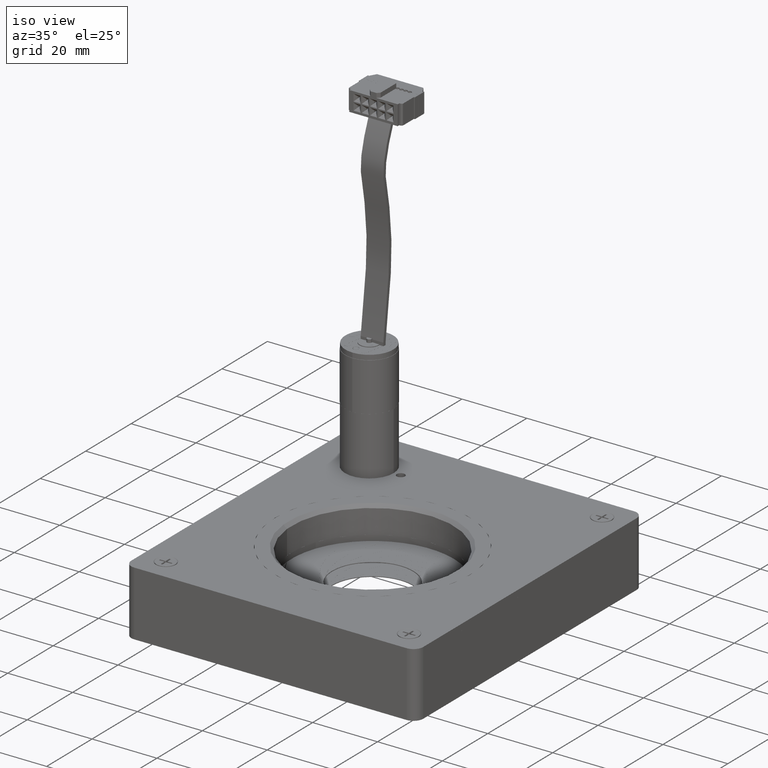
[diagram: clean part render]
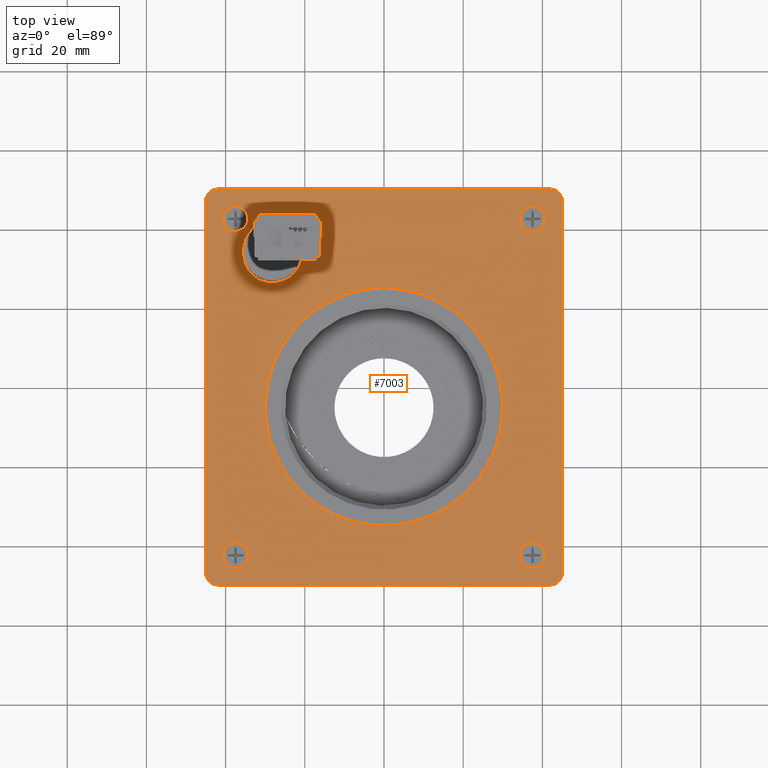
[diagram: tour spotlight — one face highlighted and labeled with its STEP entity id]
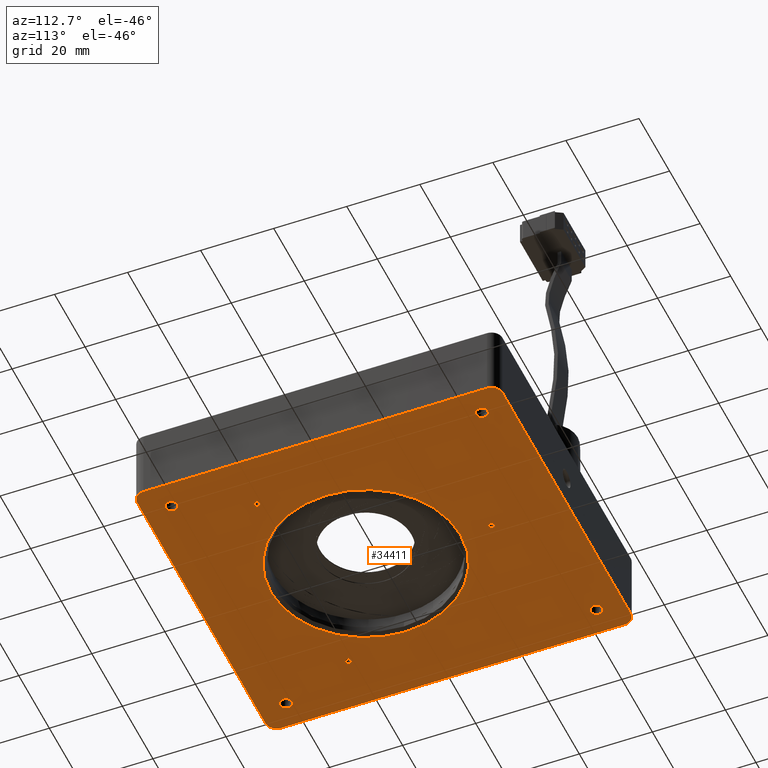
[diagram: tour spotlight — one face highlighted and labeled with its STEP entity id]
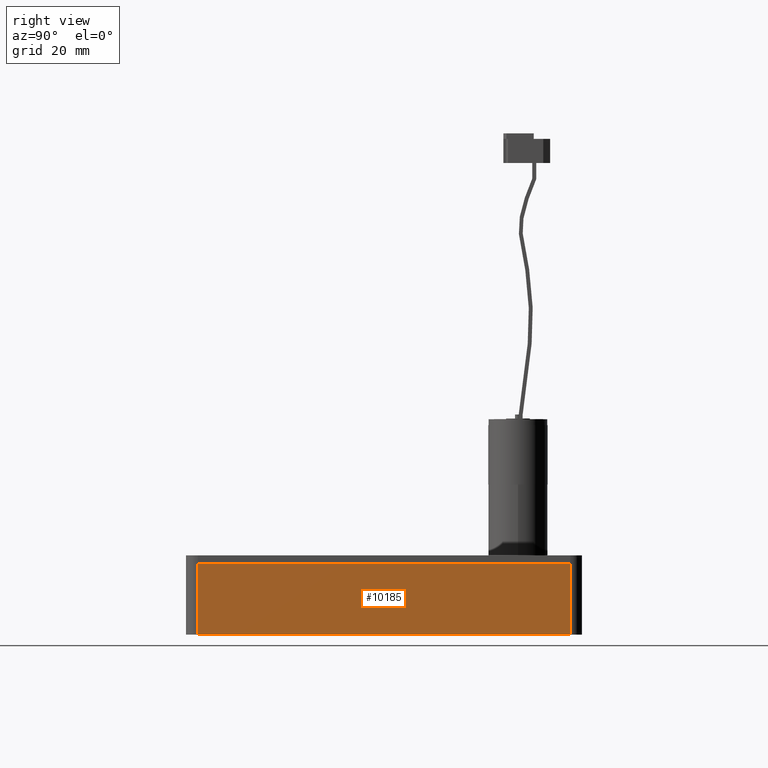
[diagram: tour spotlight — one face highlighted and labeled with its STEP entity id]
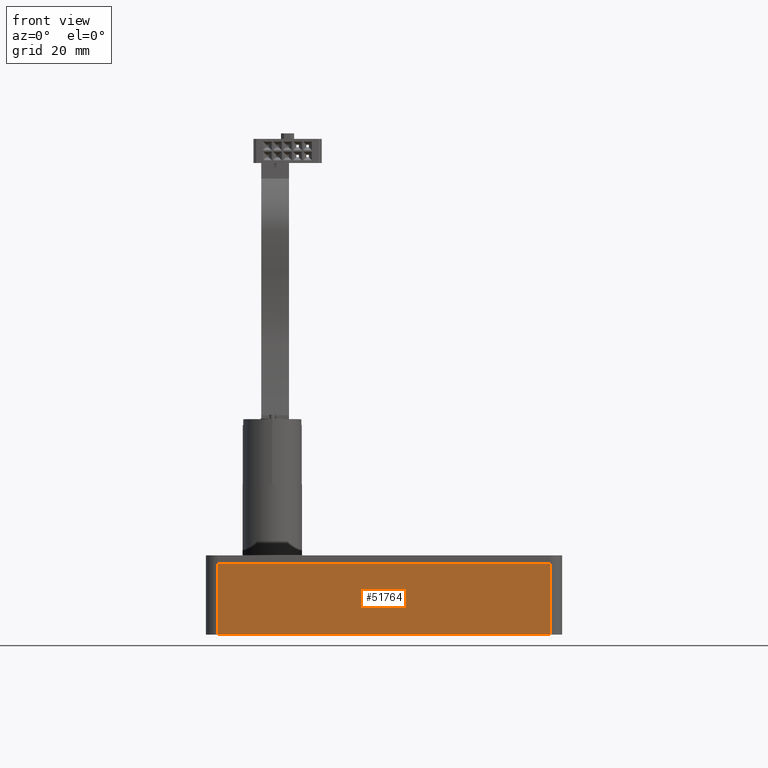
[diagram: tour spotlight — one face highlighted and labeled with its STEP entity id]
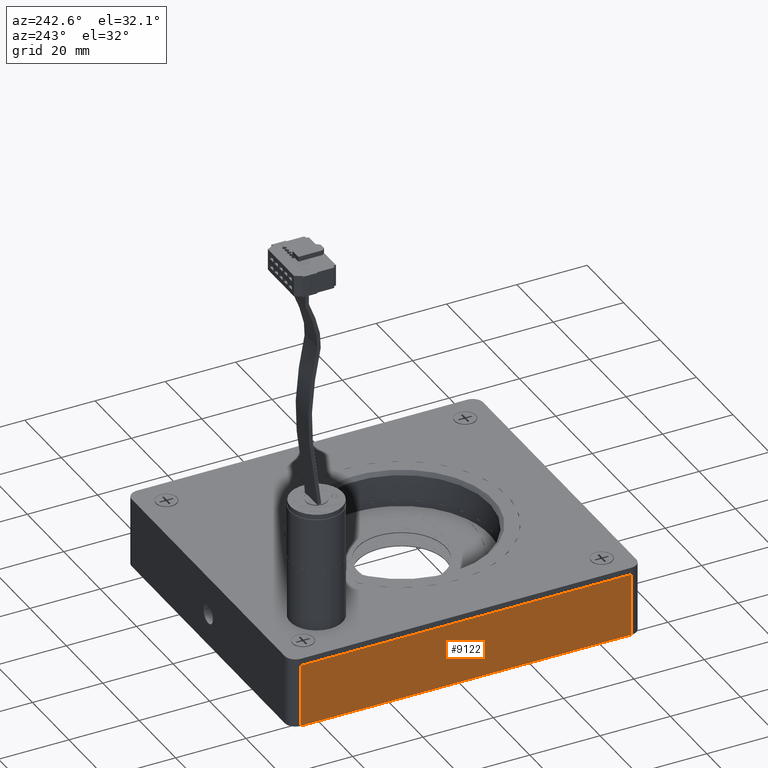
[diagram: tour spotlight — one face highlighted and labeled with its STEP entity id]
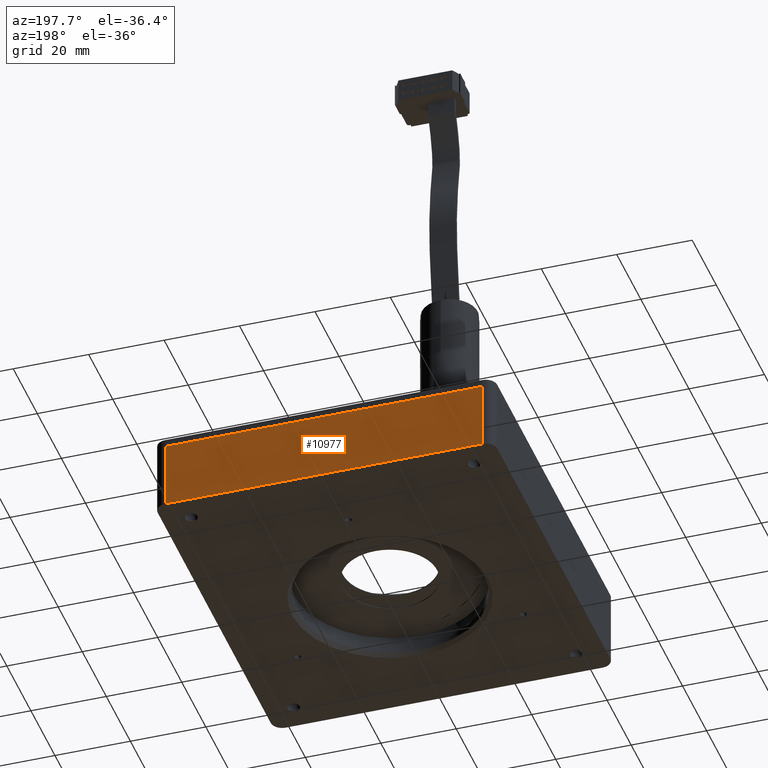
[diagram: tour spotlight — one face highlighted and labeled with its STEP entity id]
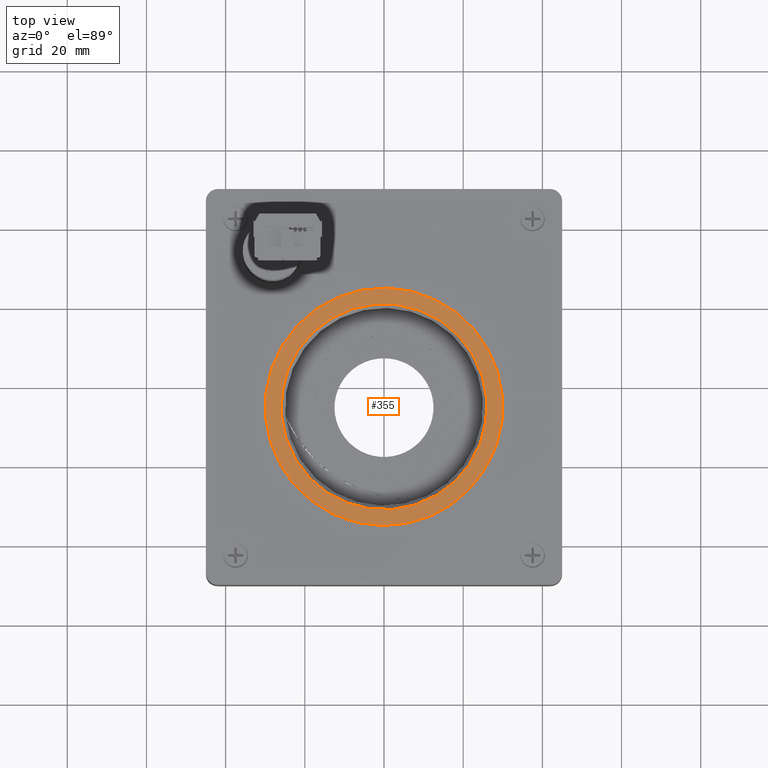
[diagram: tour spotlight — one face highlighted and labeled with its STEP entity id]
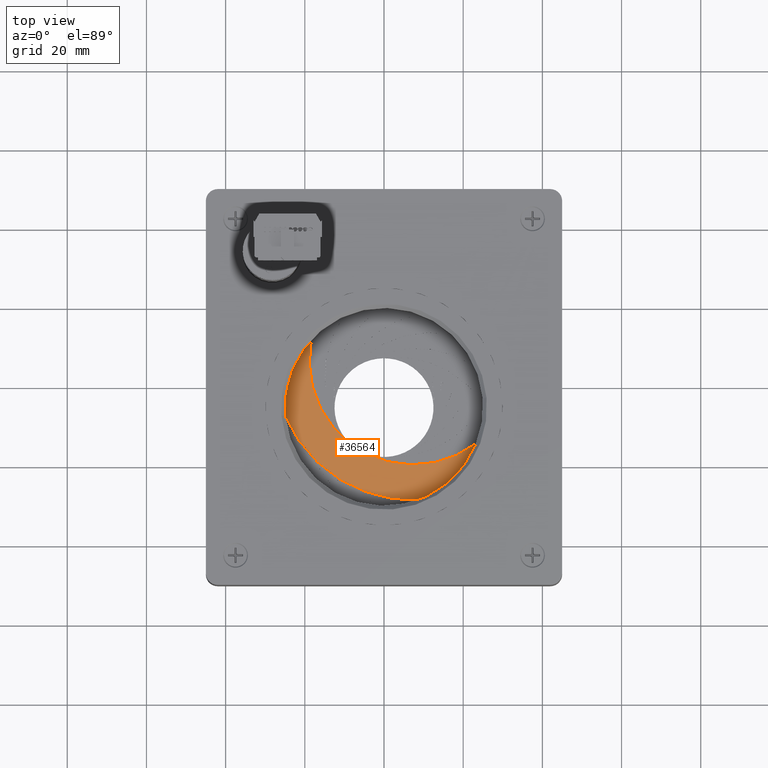
[diagram: tour spotlight — one face highlighted and labeled with its STEP entity id]
A machine part: a face-by-face anatomy tour. The part has 1691 B-rep faces; the first image is the clean iso view, then the 8 largest visible faces are spotlighted one at a time (largest first), each with its STEP entity span.

Face 1 — top view, entity #7003. In plain terms, the highlighted planar face has unit normal (-0, 0, 1).
Definition (entity closure, byte-faithful):
#457 = ORIENTED_EDGE ( 'NONE', *, *, #2475, .F. ) ;
#603 = AXIS2_PLACEMENT_3D ( 'NONE', #5866, #14325, #38904 ) ;
#1714 = EDGE_CURVE ( 'NONE', #46414, #42526, #31752, .T. ) ;
#1744 = FACE_OUTER_BOUND ( 'NONE', #41533, .T. ) ;
#2212 = CIRCLE ( 'NONE', #30841, 3.000000000000002700 ) ;
#2378 = VERTEX_POINT ( 'NONE', #13824 ) ;
#2411 = DIRECTION ( 'NONE',  ( 0.0000000000000000000, 0.0000000000000000000, 1.000000000000000000 ) ) ;
#2454 = AXIS2_PLACEMENT_3D ( 'NONE', #19899, #44591, #40850 ) ;
#2475 = EDGE_CURVE ( 'NONE', #25263, #50054, #32380, .T. ) ;
#2491 = ORIENTED_EDGE ( 'NONE', *, *, #26012, .F. ) ;
#2495 = EDGE_CURVE ( 'NONE', #50452, #6835, #2212, .T. ) ;
#2713 = ORIENTED_EDGE ( 'NONE', *, *, #35075, .F. ) ;
#2736 = DIRECTION ( 'NONE',  ( -0.0000000000000000000, 0.0000000000000000000, 1.000000000000000000 ) ) ;
#3056 = DIRECTION ( 'NONE',  ( -0.0000000000000000000, 0.0000000000000000000, 1.000000000000000000 ) ) ;
#3256 = CARTESIAN_POINT ( 'NONE',  ( -41.99999999999999300, -50.00000000000000000, 2.000000000000000000 ) ) ;
#3622 = EDGE_CURVE ( 'NONE', #35266, #13476, #27756, .T. ) ;
#3853 = LINE ( 'NONE', #47287, #17379 ) ;
#4045 = ORIENTED_EDGE ( 'NONE', *, *, #41148, .F. ) ;
#4137 = ORIENTED_EDGE ( 'NONE', *, *, #38552, .F. ) ;
#4173 = DIRECTION ( 'NONE',  ( 1.000000000000000000, 0.0000000000000000000, 0.0000000000000000000 ) ) ;
#5207 = EDGE_LOOP ( 'NONE', ( #2713, #457 ) ) ;
#5344 = CARTESIAN_POINT ( 'NONE',  ( -45.00000000000000000, -47.00000000000000000, 2.000000000000000000 ) ) ;
#5463 = DIRECTION ( 'NONE',  ( 1.000000000000000000, 0.0000000000000000000, 0.0000000000000000000 ) ) ;
#5567 = VERTEX_POINT ( 'NONE', #16443 ) ;
#5687 = ORIENTED_EDGE ( 'NONE', *, *, #47223, .T. ) ;
#5711 = ORIENTED_EDGE ( 'NONE', *, *, #49890, .F. ) ;
#5858 = CARTESIAN_POINT ( 'NONE',  ( -18.51369211003874700, 33.83281572999744900, 2.000000000000000000 ) ) ;
#5866 = CARTESIAN_POINT ( 'NONE',  ( -28.21369211003874600, 33.83281572999744900, 2.000000000000000000 ) ) ;
#6695 = CARTESIAN_POINT ( 'NONE',  ( -20.71369211003874600, 33.83281572999744900, 2.000000000000000000 ) ) ;
#6835 = VERTEX_POINT ( 'NONE', #35779 ) ;
#6934 = DIRECTION ( 'NONE',  ( 0.0000000000000000000, -0.0000000000000000000, -1.000000000000000000 ) ) ;
#6956 = EDGE_CURVE ( 'NONE', #27620, #47982, #48618, .T. ) ;
#6987 = ORIENTED_EDGE ( 'NONE', *, *, #11264, .T. ) ;
#7003 = ADVANCED_FACE ( 'NONE', ( #8109, #50505, #39604, #52465, #30600, #17168, #23611, #1744 ), #40609, .T. ) ;
#7299 = VERTEX_POINT ( 'NONE', #5344 ) ;
#7585 = ORIENTED_EDGE ( 'NONE', *, *, #2495, .T. ) ;
#7594 = AXIS2_PLACEMENT_3D ( 'NONE', #43488, #23264, #30734 ) ;
#7644 = EDGE_CURVE ( 'NONE', #7299, #27620, #40169, .T. ) ;
#8100 = CARTESIAN_POINT ( 'NONE',  ( 44.99999999999997200, -50.00000000000000000, 2.000000000000000000 ) ) ;
#8109 = FACE_BOUND ( 'NONE', #43354, .T. ) ;
#8273 = ORIENTED_EDGE ( 'NONE', *, *, #23698, .F. ) ;
#8458 = CARTESIAN_POINT ( 'NONE',  ( -45.00000000000000000, -50.00000000000000000, 2.000000000000000000 ) ) ;
#9604 = CARTESIAN_POINT ( 'NONE',  ( 34.35000000000015800, -42.49999999999999300, 2.000000000000000000 ) ) ;
#9646 = CIRCLE ( 'NONE', #9764, 3.149999999999999900 ) ;
#9764 = AXIS2_PLACEMENT_3D ( 'NONE', #43676, #27534, #35806 ) ;
#9892 = AXIS2_PLACEMENT_3D ( 'NONE', #23187, #39506, #10791 ) ;
#9999 = DIRECTION ( 'NONE',  ( 0.0000000000000000000, -0.0000000000000000000, -1.000000000000000000 ) ) ;
#10310 = DIRECTION ( 'NONE',  ( 1.000000000000000000, 0.0000000000000000000, 0.0000000000000000000 ) ) ;
#10682 = DIRECTION ( 'NONE',  ( -0.0000000000000000000, -0.0000000000000000000, 1.000000000000000000 ) ) ;
#10731 = DIRECTION ( 'NONE',  ( -0.0000000000000000000, 0.0000000000000000000, 1.000000000000000000 ) ) ;
#10791 = DIRECTION ( 'NONE',  ( 1.000000000000000000, 0.0000000000000000000, 0.0000000000000000000 ) ) ;
#10798 = VERTEX_POINT ( 'NONE', #43369 ) ;
#11264 = EDGE_CURVE ( 'NONE', #10798, #50452, #21625, .T. ) ;
#11895 = CARTESIAN_POINT ( 'NONE',  ( -45.00000000000001400, 50.00000000000000000, 2.000000000000000000 ) ) ;
#12479 = EDGE_LOOP ( 'NONE', ( #4137, #5711 ) ) ;
#12730 = EDGE_CURVE ( 'NONE', #2378, #5567, #31659, .T. ) ;
#13273 = DIRECTION ( 'NONE',  ( 1.000000000000000000, 0.0000000000000000000, 0.0000000000000000000 ) ) ;
#13276 = CARTESIAN_POINT ( 'NONE',  ( 45.00000000000000700, -47.00000000000000000, 2.000000000000000000 ) ) ;
#13476 = VERTEX_POINT ( 'NONE', #14408 ) ;
#13824 = CARTESIAN_POINT ( 'NONE',  ( -19.76369211003874700, 33.83281572999744900, 2.000000000000000000 ) ) ;
#14100 = DIRECTION ( 'NONE',  ( -2.081668171172168500E-016, 1.000000000000000000, -0.0000000000000000000 ) ) ;
#14299 = CIRCLE ( 'NONE', #28985, 7.500000000000000000 ) ;
#14325 = DIRECTION ( 'NONE',  ( 0.0000000000000000000, 0.0000000000000000000, 1.000000000000000000 ) ) ;
#14408 = CARTESIAN_POINT ( 'NONE',  ( -34.34999999999983800, 42.49999999999999300, 2.000000000000000000 ) ) ;
#14560 = CIRCLE ( 'NONE', #31382, 3.000000000000002700 ) ;
#14895 = EDGE_LOOP ( 'NONE', ( #27377, #5687 ) ) ;
#15352 = CIRCLE ( 'NONE', #25997, 3.149999999999999900 ) ;
#15636 = CARTESIAN_POINT ( 'NONE',  ( 37.50000000000015600, 42.49999999999999300, 2.000000000000000000 ) ) ;
#15766 = DIRECTION ( 'NONE',  ( 1.000000000000000000, 0.0000000000000000000, 0.0000000000000000000 ) ) ;
#16039 = DIRECTION ( 'NONE',  ( -0.0000000000000000000, 0.0000000000000000000, 1.000000000000000000 ) ) ;
#16056 = EDGE_LOOP ( 'NONE', ( #4045, #22300 ) ) ;
#16429 = CIRCLE ( 'NONE', #25109, 1.250000000000001100 ) ;
#16443 = CARTESIAN_POINT ( 'NONE',  ( -17.26369211003874700, 33.83281572999744900, 2.000000000000000000 ) ) ;
#16611 = VERTEX_POINT ( 'NONE', #9604 ) ;
#16621 = AXIS2_PLACEMENT_3D ( 'NONE', #27486, #2736, #39363 ) ;
#16771 = ORIENTED_EDGE ( 'NONE', *, *, #33364, .T. ) ;
#16976 = EDGE_LOOP ( 'NONE', ( #8273, #24547 ) ) ;
#17168 = FACE_BOUND ( 'NONE', #16056, .T. ) ;
#17337 = CARTESIAN_POINT ( 'NONE',  ( 34.35000000000015800, 42.49999999999999300, 2.000000000000000000 ) ) ;
#17379 = VECTOR ( 'NONE', #14100, 1000.000000000000000 ) ;
#17404 = EDGE_CURVE ( 'NONE', #37585, #10798, #29893, .T. ) ;
#17878 = EDGE_CURVE ( 'NONE', #13476, #35266, #9646, .T. ) ;
#18353 = AXIS2_PLACEMENT_3D ( 'NONE', #50878, #47098, #5463 ) ;
#18588 = CARTESIAN_POINT ( 'NONE',  ( -28.21369211003874600, 33.83281572999744900, 2.000000000000000000 ) ) ;
#19136 = DIRECTION ( 'NONE',  ( 1.000000000000000000, 0.0000000000000000000, 0.0000000000000000000 ) ) ;
#19240 = DIRECTION ( 'NONE',  ( 1.000000000000000000, 0.0000000000000000000, 0.0000000000000000000 ) ) ;
#19899 = CARTESIAN_POINT ( 'NONE',  ( 37.50000000000015600, 42.49999999999999300, 2.000000000000000000 ) ) ;
#20102 = AXIS2_PLACEMENT_3D ( 'NONE', #8100, #16039, #48876 ) ;
#21212 = DIRECTION ( 'NONE',  ( -0.0000000000000000000, 0.0000000000000000000, 1.000000000000000000 ) ) ;
#21625 = LINE ( 'NONE', #11895, #36993 ) ;
#21794 = CARTESIAN_POINT ( 'NONE',  ( -42.00000000000000700, 50.00000000000000000, 2.000000000000000000 ) ) ;
#21900 = VERTEX_POINT ( 'NONE', #13276 ) ;
#22030 = EDGE_LOOP ( 'NONE', ( #28880, #2491 ) ) ;
#22300 = ORIENTED_EDGE ( 'NONE', *, *, #28586, .F. ) ;
#22323 = ORIENTED_EDGE ( 'NONE', *, *, #17878, .F. ) ;
#22555 = VERTEX_POINT ( 'NONE', #34187 ) ;
#23187 = CARTESIAN_POINT ( 'NONE',  ( 6.938893903907228400E-015, -5.000000000000000900, 2.000000000000000000 ) ) ;
#23201 = LINE ( 'NONE', #44249, #50147 ) ;
#23264 = DIRECTION ( 'NONE',  ( -0.0000000000000000000, -0.0000000000000000000, 1.000000000000000000 ) ) ;
#23611 = FACE_BOUND ( 'NONE', #12479, .T. ) ;
#23677 = CARTESIAN_POINT ( 'NONE',  ( -29.99999999999999300, -4.999999999999997300, 2.000000000000000000 ) ) ;
#23698 = EDGE_CURVE ( 'NONE', #42526, #46414, #25194, .T. ) ;
#23771 = ORIENTED_EDGE ( 'NONE', *, *, #6956, .T. ) ;
#24172 = DIRECTION ( 'NONE',  ( -0.0000000000000000000, -0.0000000000000000000, 1.000000000000000000 ) ) ;
#24421 = DIRECTION ( 'NONE',  ( -1.000000000000000000, -0.0000000000000000000, -0.0000000000000000000 ) ) ;
#24547 = ORIENTED_EDGE ( 'NONE', *, *, #1714, .F. ) ;
#24963 = DIRECTION ( 'NONE',  ( -0.0000000000000000000, -0.0000000000000000000, 1.000000000000000000 ) ) ;
#25061 = AXIS2_PLACEMENT_3D ( 'NONE', #52533, #6934, #15766 ) ;
#25109 = AXIS2_PLACEMENT_3D ( 'NONE', #5858, #9999, #39081 ) ;
#25194 = CIRCLE ( 'NONE', #50658, 3.149999999999999900 ) ;
#25263 = VERTEX_POINT ( 'NONE', #41357 ) ;
#25957 = AXIS2_PLACEMENT_3D ( 'NONE', #36082, #3056, #19240 ) ;
#25997 = AXIS2_PLACEMENT_3D ( 'NONE', #15636, #35721, #27630 ) ;
#26012 = EDGE_CURVE ( 'NONE', #37829, #22555, #15352, .T. ) ;
#26311 = ORIENTED_EDGE ( 'NONE', *, *, #3622, .F. ) ;
#26707 = CARTESIAN_POINT ( 'NONE',  ( -42.00000000000000700, 47.00000000000000000, 2.000000000000000000 ) ) ;
#27377 = ORIENTED_EDGE ( 'NONE', *, *, #12730, .T. ) ;
#27486 = CARTESIAN_POINT ( 'NONE',  ( 41.99999999999997900, 47.00000000000000000, 2.000000000000000000 ) ) ;
#27534 = DIRECTION ( 'NONE',  ( -0.0000000000000000000, -0.0000000000000000000, 1.000000000000000000 ) ) ;
#27550 = DIRECTION ( 'NONE',  ( 1.000000000000000000, 0.0000000000000000000, 0.0000000000000000000 ) ) ;
#27620 = VERTEX_POINT ( 'NONE', #3256 ) ;
#27630 = DIRECTION ( 'NONE',  ( 1.000000000000000000, 0.0000000000000000000, 0.0000000000000000000 ) ) ;
#27756 = CIRCLE ( 'NONE', #45709, 3.149999999999999900 ) ;
#27940 = ORIENTED_EDGE ( 'NONE', *, *, #7644, .T. ) ;
#28433 = CARTESIAN_POINT ( 'NONE',  ( 44.99999999999998600, 47.00000000000000000, 2.000000000000000000 ) ) ;
#28586 = EDGE_CURVE ( 'NONE', #16611, #33452, #45160, .T. ) ;
#28880 = ORIENTED_EDGE ( 'NONE', *, *, #32701, .F. ) ;
#28985 = AXIS2_PLACEMENT_3D ( 'NONE', #18588, #2411, #19136 ) ;
#29893 = CIRCLE ( 'NONE', #16621, 3.000000000000002700 ) ;
#29935 = VECTOR ( 'NONE', #4173, 1000.000000000000000 ) ;
#30600 = FACE_BOUND ( 'NONE', #16976, .T. ) ;
#30634 = CIRCLE ( 'NONE', #2454, 3.149999999999999900 ) ;
#30734 = DIRECTION ( 'NONE',  ( 1.000000000000000000, 0.0000000000000000000, 0.0000000000000000000 ) ) ;
#30841 = AXIS2_PLACEMENT_3D ( 'NONE', #26707, #10731, #47151 ) ;
#31266 = ORIENTED_EDGE ( 'NONE', *, *, #17404, .T. ) ;
#31303 = DIRECTION ( 'NONE',  ( -0.0000000000000000000, -0.0000000000000000000, 1.000000000000000000 ) ) ;
#31382 = AXIS2_PLACEMENT_3D ( 'NONE', #45728, #21212, #13273 ) ;
#31659 = CIRCLE ( 'NONE', #25061, 1.250000000000001100 ) ;
#31752 = CIRCLE ( 'NONE', #41479, 3.149999999999999900 ) ;
#32380 = CIRCLE ( 'NONE', #603, 7.500000000000000000 ) ;
#32431 = CARTESIAN_POINT ( 'NONE',  ( 30.00000000000000700, -5.000000000000000900, 2.000000000000000000 ) ) ;
#32437 = CIRCLE ( 'NONE', #7594, 3.149999999999999900 ) ;
#32701 = EDGE_CURVE ( 'NONE', #22555, #37829, #30634, .T. ) ;
#32743 = VERTEX_POINT ( 'NONE', #23677 ) ;
#33364 = EDGE_CURVE ( 'NONE', #47982, #21900, #14560, .T. ) ;
#33452 = VERTEX_POINT ( 'NONE', #46452 ) ;
#34187 = CARTESIAN_POINT ( 'NONE',  ( 40.65000000000015500, 42.49999999999999300, 2.000000000000000000 ) ) ;
#35075 = EDGE_CURVE ( 'NONE', #50054, #25263, #14299, .T. ) ;
#35266 = VERTEX_POINT ( 'NONE', #49762 ) ;
#35721 = DIRECTION ( 'NONE',  ( -0.0000000000000000000, -0.0000000000000000000, 1.000000000000000000 ) ) ;
#35779 = CARTESIAN_POINT ( 'NONE',  ( -45.00000000000001400, 47.00000000000000000, 2.000000000000000000 ) ) ;
#35806 = DIRECTION ( 'NONE',  ( 1.000000000000000000, 0.0000000000000000000, 0.0000000000000000000 ) ) ;
#36082 = CARTESIAN_POINT ( 'NONE',  ( -41.99999999999999300, -47.00000000000000000, 2.000000000000000000 ) ) ;
#36691 = CARTESIAN_POINT ( 'NONE',  ( -37.49999999999983700, -42.49999999999999300, 2.000000000000000000 ) ) ;
#36807 = CARTESIAN_POINT ( 'NONE',  ( 41.99999999999996400, -50.00000000000000000, 2.000000000000000000 ) ) ;
#36993 = VECTOR ( 'NONE', #24421, 1000.000000000000000 ) ;
#37373 = VERTEX_POINT ( 'NONE', #32431 ) ;
#37585 = VERTEX_POINT ( 'NONE', #28433 ) ;
#37829 = VERTEX_POINT ( 'NONE', #17337 ) ;
#38552 = EDGE_CURVE ( 'NONE', #37373, #32743, #52620, .T. ) ;
#38904 = DIRECTION ( 'NONE',  ( 1.000000000000000000, 0.0000000000000000000, 0.0000000000000000000 ) ) ;
#39081 = DIRECTION ( 'NONE',  ( 1.000000000000000000, 0.0000000000000000000, 0.0000000000000000000 ) ) ;
#39363 = DIRECTION ( 'NONE',  ( 1.000000000000000000, 0.0000000000000000000, 0.0000000000000000000 ) ) ;
#39398 = CARTESIAN_POINT ( 'NONE',  ( 37.50000000000015600, -42.49999999999999300, 2.000000000000000000 ) ) ;
#39506 = DIRECTION ( 'NONE',  ( 0.0000000000000000000, 0.0000000000000000000, 1.000000000000000000 ) ) ;
#39604 = FACE_BOUND ( 'NONE', #5207, .T. ) ;
#39844 = ORIENTED_EDGE ( 'NONE', *, *, #52960, .T. ) ;
#39996 = DIRECTION ( 'NONE',  ( 1.387778780781445700E-016, -1.000000000000000000, 0.0000000000000000000 ) ) ;
#40169 = CIRCLE ( 'NONE', #25957, 3.000000000000002700 ) ;
#40609 = PLANE ( 'NONE',  #20102 ) ;
#40632 = DIRECTION ( 'NONE',  ( 1.000000000000000000, 0.0000000000000000000, 0.0000000000000000000 ) ) ;
#40850 = DIRECTION ( 'NONE',  ( 1.000000000000000000, 0.0000000000000000000, 0.0000000000000000000 ) ) ;
#41148 = EDGE_CURVE ( 'NONE', #33452, #16611, #32437, .T. ) ;
#41357 = CARTESIAN_POINT ( 'NONE',  ( -35.71369211003875000, 33.83281572999744900, 2.000000000000000000 ) ) ;
#41436 = DIRECTION ( 'NONE',  ( 1.000000000000000000, 0.0000000000000000000, 0.0000000000000000000 ) ) ;
#41479 = AXIS2_PLACEMENT_3D ( 'NONE', #36691, #24172, #40632 ) ;
#41533 = EDGE_LOOP ( 'NONE', ( #23771, #16771, #51576, #31266, #6987, #7585, #39844, #27940 ) ) ;
#42526 = VERTEX_POINT ( 'NONE', #42739 ) ;
#42739 = CARTESIAN_POINT ( 'NONE',  ( -34.34999999999983800, -42.49999999999999300, 2.000000000000000000 ) ) ;
#43354 = EDGE_LOOP ( 'NONE', ( #22323, #26311 ) ) ;
#43369 = CARTESIAN_POINT ( 'NONE',  ( 41.99999999999995700, 50.00000000000000000, 2.000000000000000000 ) ) ;
#43488 = CARTESIAN_POINT ( 'NONE',  ( 37.50000000000015600, -42.49999999999999300, 2.000000000000000000 ) ) ;
#43676 = CARTESIAN_POINT ( 'NONE',  ( -37.49999999999983700, 42.49999999999999300, 2.000000000000000000 ) ) ;
#43956 = AXIS2_PLACEMENT_3D ( 'NONE', #39398, #10682, #10310 ) ;
#44249 = CARTESIAN_POINT ( 'NONE',  ( -45.00000000000001400, 50.00000000000000000, 2.000000000000000000 ) ) ;
#44591 = DIRECTION ( 'NONE',  ( -0.0000000000000000000, -0.0000000000000000000, 1.000000000000000000 ) ) ;
#45160 = CIRCLE ( 'NONE', #43956, 3.149999999999999900 ) ;
#45709 = AXIS2_PLACEMENT_3D ( 'NONE', #49511, #24963, #41436 ) ;
#45728 = CARTESIAN_POINT ( 'NONE',  ( 42.00000000000000000, -47.00000000000000000, 2.000000000000000000 ) ) ;
#46414 = VERTEX_POINT ( 'NONE', #50292 ) ;
#46452 = CARTESIAN_POINT ( 'NONE',  ( 40.65000000000015500, -42.49999999999999300, 2.000000000000000000 ) ) ;
#47098 = DIRECTION ( 'NONE',  ( 0.0000000000000000000, 0.0000000000000000000, 1.000000000000000000 ) ) ;
#47151 = DIRECTION ( 'NONE',  ( 1.000000000000000000, 0.0000000000000000000, 0.0000000000000000000 ) ) ;
#47223 = EDGE_CURVE ( 'NONE', #5567, #2378, #16429, .T. ) ;
#47287 = CARTESIAN_POINT ( 'NONE',  ( 44.99999999999998600, 50.00000000000000000, 2.000000000000000000 ) ) ;
#47982 = VERTEX_POINT ( 'NONE', #36807 ) ;
#48618 = LINE ( 'NONE', #8458, #29935 ) ;
#48876 = DIRECTION ( 'NONE',  ( 1.000000000000000000, 0.0000000000000000000, 0.0000000000000000000 ) ) ;
#49511 = CARTESIAN_POINT ( 'NONE',  ( -37.49999999999983700, 42.49999999999999300, 2.000000000000000000 ) ) ;
#49574 = CIRCLE ( 'NONE', #18353, 30.00000000000000000 ) ;
#49762 = CARTESIAN_POINT ( 'NONE',  ( -40.64999999999984200, 42.49999999999999300, 2.000000000000000000 ) ) ;
#49890 = EDGE_CURVE ( 'NONE', #32743, #37373, #49574, .T. ) ;
#50054 = VERTEX_POINT ( 'NONE', #6695 ) ;
#50147 = VECTOR ( 'NONE', #39996, 1000.000000000000000 ) ;
#50292 = CARTESIAN_POINT ( 'NONE',  ( -40.64999999999984200, -42.49999999999999300, 2.000000000000000000 ) ) ;
#50452 = VERTEX_POINT ( 'NONE', #21794 ) ;
#50505 = FACE_BOUND ( 'NONE', #22030, .T. ) ;
#50658 = AXIS2_PLACEMENT_3D ( 'NONE', #51772, #31303, #27550 ) ;
#50878 = CARTESIAN_POINT ( 'NONE',  ( 6.938893903907228400E-015, -5.000000000000000900, 2.000000000000000000 ) ) ;
#51576 = ORIENTED_EDGE ( 'NONE', *, *, #53279, .T. ) ;
#51772 = CARTESIAN_POINT ( 'NONE',  ( -37.49999999999983700, -42.49999999999999300, 2.000000000000000000 ) ) ;
#52465 = FACE_BOUND ( 'NONE', #14895, .T. ) ;
#52533 = CARTESIAN_POINT ( 'NONE',  ( -18.51369211003874700, 33.83281572999744900, 2.000000000000000000 ) ) ;
#52620 = CIRCLE ( 'NONE', #9892, 30.00000000000000000 ) ;
#52960 = EDGE_CURVE ( 'NONE', #6835, #7299, #23201, .T. ) ;
#53279 = EDGE_CURVE ( 'NONE', #21900, #37585, #3853, .T. ) ;

Face 2 — auxiliary view, entity #34411. In plain terms, the highlighted planar face has unit normal (-0, -0, -1).
Definition (entity closure, byte-faithful):
#242 = CARTESIAN_POINT ( 'NONE',  ( -39.14999999999999900, 42.49999999999999300, -17.99999999999999600 ) ) ;
#368 = CARTESIAN_POINT ( 'NONE',  ( -44.99999999999997200, 47.00000000000000000, -17.99999999999999300 ) ) ;
#488 = CARTESIAN_POINT ( 'NONE',  ( 42.00000000000000700, -50.00000000000000000, -18.00000000000000400 ) ) ;
#1287 = CIRCLE ( 'NONE', #8235, 3.000000000000002700 ) ;
#1335 = CARTESIAN_POINT ( 'NONE',  ( -25.99999999999997900, -4.999999999999999100, -17.99999999999999600 ) ) ;
#1737 = CARTESIAN_POINT ( 'NONE',  ( 29.47787643056330600, -22.94282032302727400, -18.00000000000000400 ) ) ;
#2462 = CARTESIAN_POINT ( 'NONE',  ( -30.27787643056306200, -21.55717967697259500, -17.99999999999999600 ) ) ;
#2498 = VERTEX_POINT ( 'NONE', #2462 ) ;
#2943 = CIRCLE ( 'NONE', #9399, 1.649999999999998600 ) ;
#3109 = VERTEX_POINT ( 'NONE', #45944 ) ;
#3449 = ORIENTED_EDGE ( 'NONE', *, *, #17869, .F. ) ;
#3478 = DIRECTION ( 'NONE',  ( -1.217578613620690800E-016, -1.777403111722734700E-033, -1.000000000000000000 ) ) ;
#3579 = AXIS2_PLACEMENT_3D ( 'NONE', #26843, #34358, #5819 ) ;
#3611 = ORIENTED_EDGE ( 'NONE', *, *, #31995, .T. ) ;
#3648 = DIRECTION ( 'NONE',  ( -1.217578613620690800E-016, -1.777403111722734700E-033, -1.000000000000000000 ) ) ;
#3689 = DIRECTION ( 'NONE',  ( -1.000000000000000000, 0.0000000000000000000, 0.0000000000000000000 ) ) ;
#4440 = CARTESIAN_POINT ( 'NONE',  ( 42.00000000000000700, -47.00000000000000000, -18.00000000000000400 ) ) ;
#4454 = CIRCLE ( 'NONE', #26260, 1.649999999999998600 ) ;
#4502 = VERTEX_POINT ( 'NONE', #38672 ) ;
#4564 = VERTEX_POINT ( 'NONE', #22363 ) ;
#4612 = CARTESIAN_POINT ( 'NONE',  ( 29.87787643056330100, -22.24999999999972300, -18.00000000000000400 ) ) ;
#4888 = CARTESIAN_POINT ( 'NONE',  ( 35.85000000000000100, 42.49999999999999300, -18.00000000000000400 ) ) ;
#4950 = ORIENTED_EDGE ( 'NONE', *, *, #22726, .T. ) ;
#5141 = EDGE_CURVE ( 'NONE', #21289, #23252, #1287, .T. ) ;
#5773 = CIRCLE ( 'NONE', #41810, 1.649999999999998600 ) ;
#5819 = DIRECTION ( 'NONE',  ( -0.4999999999999933900, -0.8660254037844423700, 0.0000000000000000000 ) ) ;
#5837 = CARTESIAN_POINT ( 'NONE',  ( 25.99999999999998600, -4.999999999999995600, -18.00000000000000400 ) ) ;
#6217 = CARTESIAN_POINT ( 'NONE',  ( 39.14999999999999900, 42.49999999999999300, -18.00000000000000400 ) ) ;
#6453 = AXIS2_PLACEMENT_3D ( 'NONE', #12518, #8710, #41202 ) ;
#6529 = DIRECTION ( 'NONE',  ( -1.000000000000000000, 0.0000000000000000000, 0.0000000000000000000 ) ) ;
#6559 = VECTOR ( 'NONE', #10519, 1000.000000000000000 ) ;
#6629 = VERTEX_POINT ( 'NONE', #1335 ) ;
#7081 = CARTESIAN_POINT ( 'NONE',  ( 45.00000000000002100, 50.00000000000000000, -18.00000000000000700 ) ) ;
#7139 = CARTESIAN_POINT ( 'NONE',  ( -29.87787643056306300, -22.25000000000014600, -17.99999999999999600 ) ) ;
#7416 = DIRECTION ( 'NONE',  ( 1.000000000000000000, 0.0000000000000000000, 0.0000000000000000000 ) ) ;
#7863 = AXIS2_PLACEMENT_3D ( 'NONE', #47992, #3478, #11749 ) ;
#8045 = AXIS2_PLACEMENT_3D ( 'NONE', #25229, #24729, #44911 ) ;
#8077 = VERTEX_POINT ( 'NONE', #43712 ) ;
#8118 = ORIENTED_EDGE ( 'NONE', *, *, #30995, .T. ) ;
#8180 = EDGE_CURVE ( 'NONE', #28109, #42605, #2943, .T. ) ;
#8235 = AXIS2_PLACEMENT_3D ( 'NONE', #4440, #29544, #37650 ) ;
#8386 = EDGE_CURVE ( 'NONE', #30648, #4502, #10679, .T. ) ;
#8433 = AXIS2_PLACEMENT_3D ( 'NONE', #42466, #9272, #34384 ) ;
#8710 = DIRECTION ( 'NONE',  ( -1.217578613620690800E-016, -1.777403111722734700E-033, -1.000000000000000000 ) ) ;
#9272 = DIRECTION ( 'NONE',  ( -1.217578613620690800E-016, -1.777403111722734700E-033, -1.000000000000000000 ) ) ;
#9399 = AXIS2_PLACEMENT_3D ( 'NONE', #44212, #36016, #3689 ) ;
#10020 = AXIS2_PLACEMENT_3D ( 'NONE', #27929, #52862, #32030 ) ;
#10088 = ORIENTED_EDGE ( 'NONE', *, *, #28439, .F. ) ;
#10519 = DIRECTION ( 'NONE',  ( -1.000000000000000000, -5.204170427930421300E-018, 1.217578613620684100E-016 ) ) ;
#10679 = CIRCLE ( 'NONE', #31413, 0.7999999999999988200 ) ;
#10815 = CARTESIAN_POINT ( 'NONE',  ( 37.50000000000000000, -42.49999999999999300, -18.00000000000000400 ) ) ;
#10889 = ORIENTED_EDGE ( 'NONE', *, *, #5141, .T. ) ;
#11058 = CARTESIAN_POINT ( 'NONE',  ( -37.50000000000000000, 42.49999999999999300, -17.99999999999999600 ) ) ;
#11208 = CIRCLE ( 'NONE', #37388, 25.99999999999998200 ) ;
#11265 = AXIS2_PLACEMENT_3D ( 'NONE', #36757, #28475, #24764 ) ;
#11749 = DIRECTION ( 'NONE',  ( -1.000000000000000000, 0.0000000000000000000, 0.0000000000000000000 ) ) ;
#11916 = CARTESIAN_POINT ( 'NONE',  ( 4.593729371766043300E-015, 29.50000000000000700, -18.00000000000000000 ) ) ;
#12027 = VERTEX_POINT ( 'NONE', #21318 ) ;
#12160 = EDGE_CURVE ( 'NONE', #30157, #6629, #11208, .T. ) ;
#12486 = AXIS2_PLACEMENT_3D ( 'NONE', #4612, #16331, #37475 ) ;
#12518 = CARTESIAN_POINT ( 'NONE',  ( -37.50000000000000000, 42.49999999999999300, -17.99999999999999600 ) ) ;
#12783 = DIRECTION ( 'NONE',  ( -1.000000000000000000, 0.0000000000000000000, 0.0000000000000000000 ) ) ;
#12895 = AXIS2_PLACEMENT_3D ( 'NONE', #40438, #53018, #44539 ) ;
#13556 = DIRECTION ( 'NONE',  ( 1.217578613620690800E-016, 1.777403111722734700E-033, 1.000000000000000000 ) ) ;
#13741 = DIRECTION ( 'NONE',  ( -1.000000000000000000, 0.0000000000000000000, 1.334402673828314100E-016 ) ) ;
#13814 = CIRCLE ( 'NONE', #15186, 1.649999999999998600 ) ;
#14057 = ORIENTED_EDGE ( 'NONE', *, *, #17799, .T. ) ;
#14089 = VERTEX_POINT ( 'NONE', #6217 ) ;
#14152 = LINE ( 'NONE', #27492, #36665 ) ;
#14261 = EDGE_LOOP ( 'NONE', ( #34575, #46340, #8118, #17441, #24632, #32666, #3611, #10889 ) ) ;
#14554 = CARTESIAN_POINT ( 'NONE',  ( 45.00000000000002100, 50.00000000000000000, -18.00000000000000700 ) ) ;
#14660 = ORIENTED_EDGE ( 'NONE', *, *, #23240, .T. ) ;
#15186 = AXIS2_PLACEMENT_3D ( 'NONE', #23616, #3648, #20216 ) ;
#15703 = FACE_BOUND ( 'NONE', #23063, .T. ) ;
#16331 = DIRECTION ( 'NONE',  ( 1.217578613620690800E-016, 1.777403111722734700E-033, 1.000000000000000000 ) ) ;
#16632 = LINE ( 'NONE', #7081, #48094 ) ;
#16680 = EDGE_LOOP ( 'NONE', ( #50559, #24577 ) ) ;
#16999 = DIRECTION ( 'NONE',  ( -1.217578613620690800E-016, -1.777403111722734700E-033, -1.000000000000000000 ) ) ;
#17441 = ORIENTED_EDGE ( 'NONE', *, *, #37349, .T. ) ;
#17696 = EDGE_LOOP ( 'NONE', ( #41343, #28712 ) ) ;
#17799 = EDGE_CURVE ( 'NONE', #24909, #20390, #49473, .T. ) ;
#17869 = EDGE_CURVE ( 'NONE', #8077, #27142, #39238, .T. ) ;
#18140 = VERTEX_POINT ( 'NONE', #21089 ) ;
#18201 = AXIS2_PLACEMENT_3D ( 'NONE', #25075, #16999, #49973 ) ;
#18659 = CIRCLE ( 'NONE', #29358, 0.7999999999999991600 ) ;
#19403 = DIRECTION ( 'NONE',  ( 1.217578613620690800E-016, 1.777403111722734700E-033, 1.000000000000000000 ) ) ;
#20072 = EDGE_LOOP ( 'NONE', ( #28795, #47728 ) ) ;
#20216 = DIRECTION ( 'NONE',  ( -1.000000000000000000, 0.0000000000000000000, 0.0000000000000000000 ) ) ;
#20372 = DIRECTION ( 'NONE',  ( 1.217578613620690800E-016, 1.777403111722734700E-033, 1.000000000000000000 ) ) ;
#20390 = VERTEX_POINT ( 'NONE', #21192 ) ;
#20736 = CIRCLE ( 'NONE', #12486, 0.7999999999999988200 ) ;
#21089 = CARTESIAN_POINT ( 'NONE',  ( 39.14999999999999900, -42.49999999999999300, -18.00000000000000400 ) ) ;
#21192 = CARTESIAN_POINT ( 'NONE',  ( 30.27787643056329600, -21.55717967697216900, -18.00000000000000400 ) ) ;
#21225 = VERTEX_POINT ( 'NONE', #27516 ) ;
#21289 = VERTEX_POINT ( 'NONE', #47988 ) ;
#21318 = CARTESIAN_POINT ( 'NONE',  ( 42.00000000000001400, 50.00000000000000000, -18.00000000000000400 ) ) ;
#21857 = CIRCLE ( 'NONE', #8045, 1.649999999999998600 ) ;
#22363 = CARTESIAN_POINT ( 'NONE',  ( 35.85000000000000100, -42.49999999999999300, -18.00000000000000400 ) ) ;
#22726 = EDGE_CURVE ( 'NONE', #2498, #26281, #41965, .T. ) ;
#23063 = EDGE_LOOP ( 'NONE', ( #52165, #46226 ) ) ;
#23240 = EDGE_CURVE ( 'NONE', #20390, #24909, #20736, .T. ) ;
#23252 = VERTEX_POINT ( 'NONE', #488 ) ;
#23616 = CARTESIAN_POINT ( 'NONE',  ( -37.50000000000000000, -42.49999999999999300, -17.99999999999999600 ) ) ;
#24577 = ORIENTED_EDGE ( 'NONE', *, *, #25224, .F. ) ;
#24632 = ORIENTED_EDGE ( 'NONE', *, *, #31357, .T. ) ;
#24683 = DIRECTION ( 'NONE',  ( 1.335737076502141500E-016, 1.000000000000000000, -1.434952254968314100E-032 ) ) ;
#24698 = FACE_BOUND ( 'NONE', #51523, .T. ) ;
#24729 = DIRECTION ( 'NONE',  ( -1.217578613620690800E-016, -1.777403111722734700E-033, -1.000000000000000000 ) ) ;
#24764 = DIRECTION ( 'NONE',  ( -1.000000000000000000, 0.0000000000000000000, 0.0000000000000000000 ) ) ;
#24909 = VERTEX_POINT ( 'NONE', #1737 ) ;
#25075 = CARTESIAN_POINT ( 'NONE',  ( -41.99999999999997900, -47.00000000000000000, -17.99999999999999600 ) ) ;
#25224 = EDGE_CURVE ( 'NONE', #18140, #4564, #21857, .T. ) ;
#25229 = CARTESIAN_POINT ( 'NONE',  ( 37.50000000000000000, -42.49999999999999300, -18.00000000000000400 ) ) ;
#25955 = FACE_OUTER_BOUND ( 'NONE', #14261, .T. ) ;
#26129 = CARTESIAN_POINT ( 'NONE',  ( 4.773273251529622400E-015, -4.999999999999999100, -18.00000000000000000 ) ) ;
#26148 = AXIS2_PLACEMENT_3D ( 'NONE', #26682, #26506, #26859 ) ;
#26260 = AXIS2_PLACEMENT_3D ( 'NONE', #37385, #45408, #12783 ) ;
#26281 = VERTEX_POINT ( 'NONE', #37828 ) ;
#26373 = EDGE_CURVE ( 'NONE', #52080, #14089, #45414, .T. ) ;
#26441 = CIRCLE ( 'NONE', #11265, 3.000000000000002700 ) ;
#26506 = DIRECTION ( 'NONE',  ( 1.217578613620690800E-016, 1.777403111722734700E-033, 1.000000000000000000 ) ) ;
#26682 = CARTESIAN_POINT ( 'NONE',  ( 4.773273251529622400E-015, -4.999999999999999100, -18.00000000000000000 ) ) ;
#26729 = CIRCLE ( 'NONE', #51432, 0.7999999999999988200 ) ;
#26843 = CARTESIAN_POINT ( 'NONE',  ( 29.87787643056330100, -22.24999999999972300, -18.00000000000000400 ) ) ;
#26859 = DIRECTION ( 'NONE',  ( -1.000000000000000000, 0.0000000000000000000, 1.334402673828314100E-016 ) ) ;
#26959 = CARTESIAN_POINT ( 'NONE',  ( -35.85000000000000100, -42.49999999999999300, -17.99999999999999600 ) ) ;
#27036 = EDGE_CURVE ( 'NONE', #4502, #30648, #26729, .T. ) ;
#27142 = VERTEX_POINT ( 'NONE', #242 ) ;
#27454 = DIRECTION ( 'NONE',  ( 1.000000000000000000, 5.204170427930421300E-018, -1.217578613620684100E-016 ) ) ;
#27492 = CARTESIAN_POINT ( 'NONE',  ( -44.99999999999997200, 50.00000000000000000, -17.99999999999999300 ) ) ;
#27516 = CARTESIAN_POINT ( 'NONE',  ( 45.00000000000002100, 47.00000000000000000, -18.00000000000000700 ) ) ;
#27929 = CARTESIAN_POINT ( 'NONE',  ( -29.87787643056306300, -22.25000000000014600, -17.99999999999999600 ) ) ;
#28109 = VERTEX_POINT ( 'NONE', #52181 ) ;
#28245 = CIRCLE ( 'NONE', #26148, 25.99999999999998200 ) ;
#28354 = ORIENTED_EDGE ( 'NONE', *, *, #27036, .T. ) ;
#28439 = EDGE_CURVE ( 'NONE', #27142, #8077, #49714, .T. ) ;
#28475 = DIRECTION ( 'NONE',  ( -1.217578613620690800E-016, -1.777403111722734700E-033, -1.000000000000000000 ) ) ;
#28712 = ORIENTED_EDGE ( 'NONE', *, *, #50232, .F. ) ;
#28795 = ORIENTED_EDGE ( 'NONE', *, *, #8180, .F. ) ;
#29358 = AXIS2_PLACEMENT_3D ( 'NONE', #7139, #19403, #48084 ) ;
#29522 = VECTOR ( 'NONE', #27454, 1000.000000000000000 ) ;
#29544 = DIRECTION ( 'NONE',  ( -1.217578613620690800E-016, -1.777403111722734700E-033, -1.000000000000000000 ) ) ;
#29913 = ORIENTED_EDGE ( 'NONE', *, *, #8386, .T. ) ;
#30157 = VERTEX_POINT ( 'NONE', #5837 ) ;
#30310 = EDGE_CURVE ( 'NONE', #6629, #30157, #28245, .T. ) ;
#30648 = VERTEX_POINT ( 'NONE', #33083 ) ;
#30995 = EDGE_CURVE ( 'NONE', #52355, #41882, #14152, .T. ) ;
#31287 = DIRECTION ( 'NONE',  ( -1.217578613620690800E-016, -1.777403111722734700E-033, -1.000000000000000000 ) ) ;
#31357 = EDGE_CURVE ( 'NONE', #3109, #12027, #49426, .T. ) ;
#31413 = AXIS2_PLACEMENT_3D ( 'NONE', #11916, #20372, #49073 ) ;
#31995 = EDGE_CURVE ( 'NONE', #21225, #21289, #16632, .T. ) ;
#32030 = DIRECTION ( 'NONE',  ( -0.5000000000000017800, 0.8660254037844376000, 0.0000000000000000000 ) ) ;
#32536 = CARTESIAN_POINT ( 'NONE',  ( -41.99999999999995700, -50.00000000000000000, -17.99999999999999600 ) ) ;
#32574 = CIRCLE ( 'NONE', #7863, 3.000000000000002700 ) ;
#32666 = ORIENTED_EDGE ( 'NONE', *, *, #46211, .T. ) ;
#33083 = CARTESIAN_POINT ( 'NONE',  ( -0.7999999999999943800, 29.50000000000000700, -18.00000000000000000 ) ) ;
#33361 = EDGE_LOOP ( 'NONE', ( #10088, #3449 ) ) ;
#34358 = DIRECTION ( 'NONE',  ( 1.217578613620690800E-016, 1.777403111722734700E-033, 1.000000000000000000 ) ) ;
#34384 = DIRECTION ( 'NONE',  ( -1.000000000000000000, 0.0000000000000000000, 0.0000000000000000000 ) ) ;
#34386 = VERTEX_POINT ( 'NONE', #32536 ) ;
#34411 = ADVANCED_FACE ( 'NONE', ( #43272, #46458, #52925, #35583, #36870, #41992, #15703, #24698, #25955 ), #53184, .T. ) ;
#34575 = ORIENTED_EDGE ( 'NONE', *, *, #51778, .T. ) ;
#34848 = LINE ( 'NONE', #51586, #6559 ) ;
#35583 = FACE_BOUND ( 'NONE', #16680, .T. ) ;
#35656 = DIRECTION ( 'NONE',  ( -6.418476861114186200E-017, -1.000000000000000000, 5.900873730102757100E-033 ) ) ;
#36016 = DIRECTION ( 'NONE',  ( -1.217578613620690800E-016, -1.777403111722734700E-033, -1.000000000000000000 ) ) ;
#36644 = EDGE_CURVE ( 'NONE', #4564, #18140, #5773, .T. ) ;
#36665 = VECTOR ( 'NONE', #24683, 1000.000000000000000 ) ;
#36757 = CARTESIAN_POINT ( 'NONE',  ( -41.99999999999997200, 47.00000000000000000, -17.99999999999999600 ) ) ;
#36870 = FACE_BOUND ( 'NONE', #39493, .T. ) ;
#37349 = EDGE_CURVE ( 'NONE', #41882, #3109, #26441, .T. ) ;
#37385 = CARTESIAN_POINT ( 'NONE',  ( 37.50000000000000000, 42.49999999999999300, -18.00000000000000400 ) ) ;
#37388 = AXIS2_PLACEMENT_3D ( 'NONE', #26129, #13556, #13741 ) ;
#37475 = DIRECTION ( 'NONE',  ( -0.4999999999999933900, -0.8660254037844423700, 0.0000000000000000000 ) ) ;
#37650 = DIRECTION ( 'NONE',  ( -1.000000000000000000, 0.0000000000000000000, 0.0000000000000000000 ) ) ;
#37828 = CARTESIAN_POINT ( 'NONE',  ( -29.47787643056305700, -22.94282032302768900, -17.99999999999999600 ) ) ;
#38672 = CARTESIAN_POINT ( 'NONE',  ( 0.8000000000000033800, 29.50000000000000700, -18.00000000000000000 ) ) ;
#38982 = CARTESIAN_POINT ( 'NONE',  ( -44.99999999999998600, -47.00000000000000000, -17.99999999999999300 ) ) ;
#39238 = CIRCLE ( 'NONE', #50012, 1.649999999999998600 ) ;
#39493 = EDGE_LOOP ( 'NONE', ( #14057, #14660 ) ) ;
#39865 = DIRECTION ( 'NONE',  ( -1.000000000000000000, 0.0000000000000000000, 0.0000000000000000000 ) ) ;
#40052 = DIRECTION ( 'NONE',  ( -1.217578613620690800E-016, -1.777403111722734700E-033, -1.000000000000000000 ) ) ;
#40438 = CARTESIAN_POINT ( 'NONE',  ( -44.99999999999995700, -50.00000000000000000, -17.99999999999999300 ) ) ;
#41202 = DIRECTION ( 'NONE',  ( -1.000000000000000000, 0.0000000000000000000, 0.0000000000000000000 ) ) ;
#41280 = EDGE_CURVE ( 'NONE', #42605, #28109, #13814, .T. ) ;
#41343 = ORIENTED_EDGE ( 'NONE', *, *, #26373, .F. ) ;
#41588 = CIRCLE ( 'NONE', #18201, 3.000000000000002700 ) ;
#41810 = AXIS2_PLACEMENT_3D ( 'NONE', #10815, #40052, #39865 ) ;
#41882 = VERTEX_POINT ( 'NONE', #368 ) ;
#41965 = CIRCLE ( 'NONE', #10020, 0.7999999999999991600 ) ;
#41992 = FACE_BOUND ( 'NONE', #52766, .T. ) ;
#42466 = CARTESIAN_POINT ( 'NONE',  ( 37.50000000000000000, 42.49999999999999300, -18.00000000000000400 ) ) ;
#42605 = VERTEX_POINT ( 'NONE', #26959 ) ;
#43272 = FACE_BOUND ( 'NONE', #17696, .T. ) ;
#43712 = CARTESIAN_POINT ( 'NONE',  ( -35.85000000000000100, 42.49999999999999300, -17.99999999999999600 ) ) ;
#44023 = DIRECTION ( 'NONE',  ( 1.217578613620690800E-016, 1.777403111722734700E-033, 1.000000000000000000 ) ) ;
#44212 = CARTESIAN_POINT ( 'NONE',  ( -37.50000000000000000, -42.49999999999999300, -17.99999999999999600 ) ) ;
#44470 = EDGE_CURVE ( 'NONE', #26281, #2498, #18659, .T. ) ;
#44539 = DIRECTION ( 'NONE',  ( -1.000000000000000000, -5.204170427930421300E-018, 1.217578613620684100E-016 ) ) ;
#44546 = CARTESIAN_POINT ( 'NONE',  ( 4.593729371766043300E-015, 29.50000000000000700, -18.00000000000000000 ) ) ;
#44911 = DIRECTION ( 'NONE',  ( -1.000000000000000000, 0.0000000000000000000, 0.0000000000000000000 ) ) ;
#45408 = DIRECTION ( 'NONE',  ( -1.217578613620690800E-016, -1.777403111722734700E-033, -1.000000000000000000 ) ) ;
#45414 = CIRCLE ( 'NONE', #8433, 1.649999999999998600 ) ;
#45724 = EDGE_CURVE ( 'NONE', #34386, #52355, #41588, .T. ) ;
#45944 = CARTESIAN_POINT ( 'NONE',  ( -41.99999999999995000, 50.00000000000000000, -17.99999999999999600 ) ) ;
#46211 = EDGE_CURVE ( 'NONE', #12027, #21225, #32574, .T. ) ;
#46226 = ORIENTED_EDGE ( 'NONE', *, *, #12160, .T. ) ;
#46340 = ORIENTED_EDGE ( 'NONE', *, *, #45724, .T. ) ;
#46458 = FACE_BOUND ( 'NONE', #33361, .T. ) ;
#47728 = ORIENTED_EDGE ( 'NONE', *, *, #41280, .F. ) ;
#47988 = CARTESIAN_POINT ( 'NONE',  ( 45.00000000000001400, -47.00000000000000000, -18.00000000000000700 ) ) ;
#47992 = CARTESIAN_POINT ( 'NONE',  ( 42.00000000000001400, 47.00000000000000000, -18.00000000000000400 ) ) ;
#48084 = DIRECTION ( 'NONE',  ( -0.5000000000000017800, 0.8660254037844376000, 0.0000000000000000000 ) ) ;
#48094 = VECTOR ( 'NONE', #35656, 1000.000000000000000 ) ;
#49073 = DIRECTION ( 'NONE',  ( 1.000000000000000000, 0.0000000000000000000, 0.0000000000000000000 ) ) ;
#49426 = LINE ( 'NONE', #14554, #29522 ) ;
#49473 = CIRCLE ( 'NONE', #3579, 0.7999999999999988200 ) ;
#49714 = CIRCLE ( 'NONE', #6453, 1.649999999999998600 ) ;
#49973 = DIRECTION ( 'NONE',  ( -1.000000000000000000, 0.0000000000000000000, 0.0000000000000000000 ) ) ;
#50012 = AXIS2_PLACEMENT_3D ( 'NONE', #11058, #31287, #6529 ) ;
#50232 = EDGE_CURVE ( 'NONE', #14089, #52080, #4454, .T. ) ;
#50559 = ORIENTED_EDGE ( 'NONE', *, *, #36644, .F. ) ;
#50912 = ORIENTED_EDGE ( 'NONE', *, *, #44470, .T. ) ;
#51432 = AXIS2_PLACEMENT_3D ( 'NONE', #44546, #44023, #7416 ) ;
#51523 = EDGE_LOOP ( 'NONE', ( #28354, #29913 ) ) ;
#51586 = CARTESIAN_POINT ( 'NONE',  ( 45.00000000000001400, -50.00000000000000000, -18.00000000000000700 ) ) ;
#51778 = EDGE_CURVE ( 'NONE', #23252, #34386, #34848, .T. ) ;
#52080 = VERTEX_POINT ( 'NONE', #4888 ) ;
#52165 = ORIENTED_EDGE ( 'NONE', *, *, #30310, .T. ) ;
#52181 = CARTESIAN_POINT ( 'NONE',  ( -39.14999999999999900, -42.49999999999999300, -17.99999999999999600 ) ) ;
#52355 = VERTEX_POINT ( 'NONE', #38982 ) ;
#52766 = EDGE_LOOP ( 'NONE', ( #4950, #50912 ) ) ;
#52862 = DIRECTION ( 'NONE',  ( 1.217578613620690800E-016, 1.777403111722734700E-033, 1.000000000000000000 ) ) ;
#52925 = FACE_BOUND ( 'NONE', #20072, .T. ) ;
#53018 = DIRECTION ( 'NONE',  ( -1.217578613620684100E-016, -1.777403111722731300E-033, -1.000000000000000000 ) ) ;
#53184 = PLANE ( 'NONE',  #12895 ) ;

Face 3 — right view, entity #10185. In plain terms, the highlighted planar face has unit normal (-1, 0, 0).
Definition (entity closure, byte-faithful):
#190 = AXIS2_PLACEMENT_3D ( 'NONE', #45832, #50170, #823 ) ;
#823 = DIRECTION ( 'NONE',  ( 6.418476861114186200E-017, 1.000000000000000000, -5.900873730102757100E-033 ) ) ;
#1846 = LINE ( 'NONE', #3516, #44864 ) ;
#3516 = CARTESIAN_POINT ( 'NONE',  ( 45.00000000000001400, -47.00000000000000000, -18.00000000000000700 ) ) ;
#5972 = CARTESIAN_POINT ( 'NONE',  ( 45.00000000000001400, -47.00000000000000000, -5.479103761293084600E-015 ) ) ;
#7081 = CARTESIAN_POINT ( 'NONE',  ( 45.00000000000002100, 50.00000000000000000, -18.00000000000000700 ) ) ;
#7607 = DIRECTION ( 'NONE',  ( -1.217578613620690800E-016, -1.777403111722734700E-033, -1.000000000000000000 ) ) ;
#10185 = ADVANCED_FACE ( 'NONE', ( #13045 ), #37619, .F. ) ;
#13045 = FACE_OUTER_BOUND ( 'NONE', #18545, .T. ) ;
#15093 = EDGE_CURVE ( 'NONE', #38031, #21289, #1846, .T. ) ;
#16632 = LINE ( 'NONE', #7081, #48094 ) ;
#17963 = ORIENTED_EDGE ( 'NONE', *, *, #34071, .T. ) ;
#18545 = EDGE_LOOP ( 'NONE', ( #17963, #27074, #19782, #44820 ) ) ;
#19782 = ORIENTED_EDGE ( 'NONE', *, *, #31995, .F. ) ;
#21225 = VERTEX_POINT ( 'NONE', #27516 ) ;
#21289 = VERTEX_POINT ( 'NONE', #47988 ) ;
#21522 = DIRECTION ( 'NONE',  ( -6.418476861114186200E-017, -1.000000000000000000, 5.900873730102757100E-033 ) ) ;
#27074 = ORIENTED_EDGE ( 'NONE', *, *, #15093, .T. ) ;
#27263 = CARTESIAN_POINT ( 'NONE',  ( 45.00000000000002100, 47.00000000000000000, -18.00000000000000700 ) ) ;
#27516 = CARTESIAN_POINT ( 'NONE',  ( 45.00000000000002100, 47.00000000000000000, -18.00000000000000700 ) ) ;
#31995 = EDGE_CURVE ( 'NONE', #21225, #21289, #16632, .T. ) ;
#32734 = CARTESIAN_POINT ( 'NONE',  ( 45.00000000000002100, 47.00000000000000000, -5.479103761293075100E-015 ) ) ;
#33072 = DIRECTION ( 'NONE',  ( 1.217578613620690800E-016, 1.777403111722734700E-033, 1.000000000000000000 ) ) ;
#33811 = CARTESIAN_POINT ( 'NONE',  ( 45.00000000000002100, 50.00000000000000000, -5.479103761293075100E-015 ) ) ;
#34071 = EDGE_CURVE ( 'NONE', #37768, #38031, #50395, .T. ) ;
#35656 = DIRECTION ( 'NONE',  ( -6.418476861114186200E-017, -1.000000000000000000, 5.900873730102757100E-033 ) ) ;
#37453 = VECTOR ( 'NONE', #33072, 1000.000000000000000 ) ;
#37619 = PLANE ( 'NONE',  #190 ) ;
#37768 = VERTEX_POINT ( 'NONE', #32734 ) ;
#38031 = VERTEX_POINT ( 'NONE', #5972 ) ;
#42263 = EDGE_CURVE ( 'NONE', #21225, #37768, #52229, .T. ) ;
#44820 = ORIENTED_EDGE ( 'NONE', *, *, #42263, .T. ) ;
#44864 = VECTOR ( 'NONE', #7607, 1000.000000000000000 ) ;
#45832 = CARTESIAN_POINT ( 'NONE',  ( 45.00000000000002100, 50.00000000000000000, -18.00000000000000700 ) ) ;
#47988 = CARTESIAN_POINT ( 'NONE',  ( 45.00000000000001400, -47.00000000000000000, -18.00000000000000700 ) ) ;
#48094 = VECTOR ( 'NONE', #35656, 1000.000000000000000 ) ;
#49132 = VECTOR ( 'NONE', #21522, 1000.000000000000000 ) ;
#50170 = DIRECTION ( 'NONE',  ( -1.000000000000000000, 6.418476861114186200E-017, 1.217578613620684100E-016 ) ) ;
#50395 = LINE ( 'NONE', #33811, #49132 ) ;
#52229 = LINE ( 'NONE', #27263, #37453 ) ;

Face 4 — front view, entity #51764. In plain terms, the highlighted planar face has unit normal (-0, 1, -0).
Definition (entity closure, byte-faithful):
#488 = CARTESIAN_POINT ( 'NONE',  ( 42.00000000000000700, -50.00000000000000000, -18.00000000000000400 ) ) ;
#3062 = CARTESIAN_POINT ( 'NONE',  ( -41.99999999999995700, -50.00000000000000000, 5.113830177206860900E-015 ) ) ;
#3378 = VERTEX_POINT ( 'NONE', #3062 ) ;
#3698 = LINE ( 'NONE', #30725, #29985 ) ;
#6559 = VECTOR ( 'NONE', #10519, 1000.000000000000000 ) ;
#6808 = EDGE_CURVE ( 'NONE', #3378, #34386, #3698, .T. ) ;
#10320 = DIRECTION ( 'NONE',  ( -5.204170427930421300E-018, 1.000000000000000000, -1.143754450254202700E-033 ) ) ;
#10519 = DIRECTION ( 'NONE',  ( -1.000000000000000000, -5.204170427930421300E-018, 1.217578613620684100E-016 ) ) ;
#15112 = VECTOR ( 'NONE', #31213, 1000.000000000000000 ) ;
#16034 = LINE ( 'NONE', #30548, #47467 ) ;
#19524 = EDGE_CURVE ( 'NONE', #44190, #3378, #16034, .T. ) ;
#23252 = VERTEX_POINT ( 'NONE', #488 ) ;
#26996 = DIRECTION ( 'NONE',  ( -1.217578613620690800E-016, -1.777403111722734700E-033, -1.000000000000000000 ) ) ;
#27845 = ORIENTED_EDGE ( 'NONE', *, *, #51778, .F. ) ;
#29067 = FACE_OUTER_BOUND ( 'NONE', #50513, .T. ) ;
#29985 = VECTOR ( 'NONE', #26996, 1000.000000000000000 ) ;
#30548 = CARTESIAN_POINT ( 'NONE',  ( 45.00000000000001400, -50.00000000000000000, -5.479103761293084600E-015 ) ) ;
#30725 = CARTESIAN_POINT ( 'NONE',  ( -41.99999999999997900, -50.00000000000000000, -17.99999999999999600 ) ) ;
#30902 = DIRECTION ( 'NONE',  ( -1.000000000000000000, -5.204170427930421300E-018, 1.217578613620684100E-016 ) ) ;
#31213 = DIRECTION ( 'NONE',  ( 1.217578613620690800E-016, 1.777403111722734700E-033, 1.000000000000000000 ) ) ;
#31753 = ORIENTED_EDGE ( 'NONE', *, *, #6808, .T. ) ;
#32536 = CARTESIAN_POINT ( 'NONE',  ( -41.99999999999995700, -50.00000000000000000, -17.99999999999999600 ) ) ;
#33728 = CARTESIAN_POINT ( 'NONE',  ( 42.00000000000000700, -50.00000000000000000, -5.113830177206868000E-015 ) ) ;
#34386 = VERTEX_POINT ( 'NONE', #32536 ) ;
#34526 = DIRECTION ( 'NONE',  ( -1.217578613620690800E-016, -1.777403111722734700E-033, -1.000000000000000000 ) ) ;
#34707 = PLANE ( 'NONE',  #42112 ) ;
#34848 = LINE ( 'NONE', #51586, #6559 ) ;
#39505 = LINE ( 'NONE', #40038, #15112 ) ;
#40038 = CARTESIAN_POINT ( 'NONE',  ( 42.00000000000000700, -50.00000000000000000, -18.00000000000000400 ) ) ;
#42112 = AXIS2_PLACEMENT_3D ( 'NONE', #42784, #10320, #34526 ) ;
#42784 = CARTESIAN_POINT ( 'NONE',  ( 45.00000000000001400, -50.00000000000000000, -18.00000000000000700 ) ) ;
#43183 = ORIENTED_EDGE ( 'NONE', *, *, #50599, .T. ) ;
#44190 = VERTEX_POINT ( 'NONE', #33728 ) ;
#47467 = VECTOR ( 'NONE', #30902, 1000.000000000000000 ) ;
#50513 = EDGE_LOOP ( 'NONE', ( #51052, #31753, #27845, #43183 ) ) ;
#50599 = EDGE_CURVE ( 'NONE', #23252, #44190, #39505, .T. ) ;
#51052 = ORIENTED_EDGE ( 'NONE', *, *, #19524, .T. ) ;
#51586 = CARTESIAN_POINT ( 'NONE',  ( 45.00000000000001400, -50.00000000000000000, -18.00000000000000700 ) ) ;
#51764 = ADVANCED_FACE ( 'NONE', ( #29067 ), #34707, .F. ) ;
#51778 = EDGE_CURVE ( 'NONE', #23252, #34386, #34848, .T. ) ;

Face 5 — auxiliary view, entity #9122. In plain terms, the highlighted planar face has unit normal (1, -0, -0).
Definition (entity closure, byte-faithful):
#368 = CARTESIAN_POINT ( 'NONE',  ( -44.99999999999997200, 47.00000000000000000, -17.99999999999999300 ) ) ;
#646 = VECTOR ( 'NONE', #35761, 1000.000000000000000 ) ;
#1108 = AXIS2_PLACEMENT_3D ( 'NONE', #15268, #27981, #52027 ) ;
#3326 = ORIENTED_EDGE ( 'NONE', *, *, #18285, .T. ) ;
#5314 = CARTESIAN_POINT ( 'NONE',  ( -44.99999999999998600, -47.00000000000000000, 5.479103761293081400E-015 ) ) ;
#5779 = VECTOR ( 'NONE', #16760, 1000.000000000000000 ) ;
#9122 = ADVANCED_FACE ( 'NONE', ( #31084 ), #23369, .F. ) ;
#14152 = LINE ( 'NONE', #27492, #36665 ) ;
#15268 = CARTESIAN_POINT ( 'NONE',  ( -44.99999999999997200, 50.00000000000000000, -17.99999999999999300 ) ) ;
#16073 = LINE ( 'NONE', #40069, #646 ) ;
#16760 = DIRECTION ( 'NONE',  ( -1.217578613620690800E-016, -1.777403111722734700E-033, -1.000000000000000000 ) ) ;
#16848 = VECTOR ( 'NONE', #34467, 1000.000000000000000 ) ;
#16947 = CARTESIAN_POINT ( 'NONE',  ( -44.99999999999997200, 47.00000000000000000, -17.99999999999999300 ) ) ;
#18104 = EDGE_CURVE ( 'NONE', #34215, #41882, #38548, .T. ) ;
#18285 = EDGE_CURVE ( 'NONE', #52355, #24743, #16073, .T. ) ;
#23369 = PLANE ( 'NONE',  #1108 ) ;
#24682 = ORIENTED_EDGE ( 'NONE', *, *, #52200, .T. ) ;
#24683 = DIRECTION ( 'NONE',  ( 1.335737076502141500E-016, 1.000000000000000000, -1.434952254968314100E-032 ) ) ;
#24743 = VERTEX_POINT ( 'NONE', #5314 ) ;
#27492 = CARTESIAN_POINT ( 'NONE',  ( -44.99999999999997200, 50.00000000000000000, -17.99999999999999300 ) ) ;
#27981 = DIRECTION ( 'NONE',  ( 1.000000000000000000, -1.335737076502141500E-016, -1.217578613620684100E-016 ) ) ;
#30911 = LINE ( 'NONE', #34644, #16848 ) ;
#30995 = EDGE_CURVE ( 'NONE', #52355, #41882, #14152, .T. ) ;
#31084 = FACE_OUTER_BOUND ( 'NONE', #33071, .T. ) ;
#32003 = ORIENTED_EDGE ( 'NONE', *, *, #18104, .T. ) ;
#33071 = EDGE_LOOP ( 'NONE', ( #37936, #3326, #24682, #32003 ) ) ;
#34215 = VERTEX_POINT ( 'NONE', #43150 ) ;
#34467 = DIRECTION ( 'NONE',  ( 1.335737076502141500E-016, 1.000000000000000000, -1.434952254968314100E-032 ) ) ;
#34644 = CARTESIAN_POINT ( 'NONE',  ( -44.99999999999997200, 50.00000000000000000, 5.479103761293068800E-015 ) ) ;
#35761 = DIRECTION ( 'NONE',  ( 1.217578613620690800E-016, 1.777403111722734700E-033, 1.000000000000000000 ) ) ;
#36665 = VECTOR ( 'NONE', #24683, 1000.000000000000000 ) ;
#37936 = ORIENTED_EDGE ( 'NONE', *, *, #30995, .F. ) ;
#38548 = LINE ( 'NONE', #16947, #5779 ) ;
#38982 = CARTESIAN_POINT ( 'NONE',  ( -44.99999999999998600, -47.00000000000000000, -17.99999999999999300 ) ) ;
#40069 = CARTESIAN_POINT ( 'NONE',  ( -44.99999999999998600, -47.00000000000000000, -17.99999999999999300 ) ) ;
#41882 = VERTEX_POINT ( 'NONE', #368 ) ;
#43150 = CARTESIAN_POINT ( 'NONE',  ( -44.99999999999997200, 47.00000000000000000, 5.479103761293068800E-015 ) ) ;
#52027 = DIRECTION ( 'NONE',  ( -1.335737076502141500E-016, -1.000000000000000000, 1.434952254968314100E-032 ) ) ;
#52200 = EDGE_CURVE ( 'NONE', #24743, #34215, #30911, .T. ) ;
#52355 = VERTEX_POINT ( 'NONE', #38982 ) ;

Face 6 — auxiliary view, entity #10977. In plain terms, the highlighted planar face has unit normal (0, -1, 0).
Definition (entity closure, byte-faithful):
#236 = CARTESIAN_POINT ( 'NONE',  ( -1.329210632020915300E-015, 50.00000000000000000, -6.447299999999995800 ) ) ;
#266 = VERTEX_POINT ( 'NONE', #47104 ) ;
#655 = CIRCLE ( 'NONE', #31288, 2.552699999999999700 ) ;
#1813 = VERTEX_POINT ( 'NONE', #236 ) ;
#2110 = VERTEX_POINT ( 'NONE', #31241 ) ;
#3109 = VERTEX_POINT ( 'NONE', #45944 ) ;
#6829 = DIRECTION ( 'NONE',  ( -5.204170427930421300E-018, 1.000000000000000000, 2.547775089477627300E-033 ) ) ;
#8715 = EDGE_LOOP ( 'NONE', ( #13014, #22004 ) ) ;
#10157 = AXIS2_PLACEMENT_3D ( 'NONE', #33462, #21329, #41727 ) ;
#10465 = LINE ( 'NONE', #47455, #14311 ) ;
#10977 = ADVANCED_FACE ( 'NONE', ( #20864, #26542 ), #46009, .F. ) ;
#12027 = VERTEX_POINT ( 'NONE', #21318 ) ;
#12091 = AXIS2_PLACEMENT_3D ( 'NONE', #15038, #22923, #46562 ) ;
#12124 = LINE ( 'NONE', #48563, #51907 ) ;
#12314 = LINE ( 'NONE', #49958, #50196 ) ;
#12735 = ORIENTED_EDGE ( 'NONE', *, *, #15147, .T. ) ;
#13014 = ORIENTED_EDGE ( 'NONE', *, *, #30826, .F. ) ;
#13355 = DIRECTION ( 'NONE',  ( -1.217578613620690800E-016, -1.777403111722734700E-033, -1.000000000000000000 ) ) ;
#14311 = VECTOR ( 'NONE', #35258, 1000.000000000000000 ) ;
#14554 = CARTESIAN_POINT ( 'NONE',  ( 45.00000000000002100, 50.00000000000000000, -18.00000000000000700 ) ) ;
#15038 = CARTESIAN_POINT ( 'NONE',  ( -1.356029273655141800E-015, 50.00000000000000000, -8.999999999999996400 ) ) ;
#15147 = EDGE_CURVE ( 'NONE', #3109, #2110, #12124, .T. ) ;
#18548 = DIRECTION ( 'NONE',  ( -1.217578613620690000E-016, 0.0000000000000000000, -1.000000000000000000 ) ) ;
#20864 = FACE_BOUND ( 'NONE', #8715, .T. ) ;
#21318 = CARTESIAN_POINT ( 'NONE',  ( 42.00000000000001400, 50.00000000000000000, -18.00000000000000400 ) ) ;
#21329 = DIRECTION ( 'NONE',  ( 5.204170427930421300E-018, -1.000000000000000000, 1.143754450254202700E-033 ) ) ;
#22004 = ORIENTED_EDGE ( 'NONE', *, *, #22597, .F. ) ;
#22597 = EDGE_CURVE ( 'NONE', #1813, #266, #49114, .T. ) ;
#22923 = DIRECTION ( 'NONE',  ( -5.204170427930421300E-018, 1.000000000000000000, 2.547775089477627300E-033 ) ) ;
#23103 = ORIENTED_EDGE ( 'NONE', *, *, #43651, .T. ) ;
#26542 = FACE_OUTER_BOUND ( 'NONE', #50191, .T. ) ;
#27454 = DIRECTION ( 'NONE',  ( 1.000000000000000000, 5.204170427930421300E-018, -1.217578613620684100E-016 ) ) ;
#29088 = ORIENTED_EDGE ( 'NONE', *, *, #31357, .F. ) ;
#29522 = VECTOR ( 'NONE', #27454, 1000.000000000000000 ) ;
#30826 = EDGE_CURVE ( 'NONE', #266, #1813, #655, .T. ) ;
#31241 = CARTESIAN_POINT ( 'NONE',  ( -41.99999999999995000, 50.00000000000000000, 5.113830177206860200E-015 ) ) ;
#31288 = AXIS2_PLACEMENT_3D ( 'NONE', #52078, #6829, #18548 ) ;
#31357 = EDGE_CURVE ( 'NONE', #3109, #12027, #49426, .T. ) ;
#32022 = DIRECTION ( 'NONE',  ( 1.217578613620690800E-016, 1.777403111722734700E-033, 1.000000000000000000 ) ) ;
#33462 = CARTESIAN_POINT ( 'NONE',  ( 45.00000000000002100, 50.00000000000000000, -18.00000000000000700 ) ) ;
#35258 = DIRECTION ( 'NONE',  ( 1.000000000000000000, 5.204170427930421300E-018, -1.217578613620684100E-016 ) ) ;
#41727 = DIRECTION ( 'NONE',  ( 1.217578613620690800E-016, 1.777403111722734700E-033, 1.000000000000000000 ) ) ;
#42156 = ORIENTED_EDGE ( 'NONE', *, *, #51794, .T. ) ;
#42326 = VERTEX_POINT ( 'NONE', #45424 ) ;
#43651 = EDGE_CURVE ( 'NONE', #42326, #12027, #12314, .T. ) ;
#45424 = CARTESIAN_POINT ( 'NONE',  ( 42.00000000000001400, 50.00000000000000000, -5.113830177206868800E-015 ) ) ;
#45944 = CARTESIAN_POINT ( 'NONE',  ( -41.99999999999995000, 50.00000000000000000, -17.99999999999999600 ) ) ;
#46009 = PLANE ( 'NONE',  #10157 ) ;
#46562 = DIRECTION ( 'NONE',  ( -1.217578613620690000E-016, 0.0000000000000000000, -1.000000000000000000 ) ) ;
#47104 = CARTESIAN_POINT ( 'NONE',  ( -1.666840566354095300E-015, 50.00000000000000000, -11.55269999999999600 ) ) ;
#47455 = CARTESIAN_POINT ( 'NONE',  ( 45.00000000000002100, 50.00000000000000000, -5.479103761293075100E-015 ) ) ;
#48563 = CARTESIAN_POINT ( 'NONE',  ( -41.99999999999997200, 50.00000000000000000, -17.99999999999999600 ) ) ;
#49114 = CIRCLE ( 'NONE', #12091, 2.552699999999999700 ) ;
#49426 = LINE ( 'NONE', #14554, #29522 ) ;
#49958 = CARTESIAN_POINT ( 'NONE',  ( 42.00000000000001400, 50.00000000000000000, -18.00000000000000400 ) ) ;
#50191 = EDGE_LOOP ( 'NONE', ( #42156, #23103, #29088, #12735 ) ) ;
#50196 = VECTOR ( 'NONE', #13355, 1000.000000000000000 ) ;
#51794 = EDGE_CURVE ( 'NONE', #2110, #42326, #10465, .T. ) ;
#51907 = VECTOR ( 'NONE', #32022, 1000.000000000000000 ) ;
#52078 = CARTESIAN_POINT ( 'NONE',  ( -1.356029273655141800E-015, 50.00000000000000000, -8.999999999999996400 ) ) ;

Face 7 — top view, entity #355. In plain terms, the highlighted planar face has unit normal (-0, 0, 1).
Definition (entity closure, byte-faithful):
#355 = ADVANCED_FACE ( 'NONE', ( #46389, #10485 ), #12742, .T. ) ;
#776 = CIRCLE ( 'NONE', #51752, 30.00000000000009600 ) ;
#1857 = EDGE_CURVE ( 'NONE', #16806, #52709, #4113, .T. ) ;
#3665 = EDGE_LOOP ( 'NONE', ( #14948, #18390 ) ) ;
#4113 = CIRCLE ( 'NONE', #32593, 30.00000000000009600 ) ;
#4996 = AXIS2_PLACEMENT_3D ( 'NONE', #45203, #50043, #49353 ) ;
#5010 = EDGE_CURVE ( 'NONE', #33021, #27472, #6421, .T. ) ;
#6163 = DIRECTION ( 'NONE',  ( -3.525720875602199400E-017, 8.464410018028424500E-018, 1.000000000000000000 ) ) ;
#6421 = CIRCLE ( 'NONE', #29221, 26.00000000000009200 ) ;
#9898 = CARTESIAN_POINT ( 'NONE',  ( 8.084306949429586900E-015, -4.999999999999984000, 1.999999999999992200 ) ) ;
#9910 = ORIENTED_EDGE ( 'NONE', *, *, #1857, .T. ) ;
#10289 = EDGE_CURVE ( 'NONE', #52709, #16806, #776, .T. ) ;
#10485 = FACE_OUTER_BOUND ( 'NONE', #24831, .T. ) ;
#12742 = PLANE ( 'NONE',  #4996 ) ;
#14948 = ORIENTED_EDGE ( 'NONE', *, *, #5010, .T. ) ;
#16799 = CIRCLE ( 'NONE', #40007, 26.00000000000009200 ) ;
#16806 = VERTEX_POINT ( 'NONE', #35093 ) ;
#18390 = ORIENTED_EDGE ( 'NONE', *, *, #43042, .T. ) ;
#20464 = DIRECTION ( 'NONE',  ( 3.525720875602199400E-017, -8.464410018028424500E-018, -1.000000000000000000 ) ) ;
#20755 = DIRECTION ( 'NONE',  ( 0.9962413072834619400, 0.08662134645766519900, 4.336808689942004200E-017 ) ) ;
#20827 = DIRECTION ( 'NONE',  ( 0.9962413072834619400, 0.08662134645766519900, 3.336006684570771000E-017 ) ) ;
#21797 = DIRECTION ( 'NONE',  ( 3.525720875602199400E-017, -8.464410018028424500E-018, -1.000000000000000000 ) ) ;
#22527 = CARTESIAN_POINT ( 'NONE',  ( 8.084306949429586900E-015, -4.999999999999984000, 1.999999999999992200 ) ) ;
#24831 = EDGE_LOOP ( 'NONE', ( #43586, #9910 ) ) ;
#24867 = DIRECTION ( 'NONE',  ( -3.525720875602199400E-017, 8.464410018028424500E-018, 1.000000000000000000 ) ) ;
#25687 = CARTESIAN_POINT ( 'NONE',  ( -29.88723921850384700, -7.598640393729939800, 1.999999999999991300 ) ) ;
#27472 = VERTEX_POINT ( 'NONE', #42563 ) ;
#29221 = AXIS2_PLACEMENT_3D ( 'NONE', #9898, #21797, #42555 ) ;
#30733 = DIRECTION ( 'NONE',  ( 0.9962413072834619400, 0.08662134645766519900, 4.336808689942004200E-017 ) ) ;
#32593 = AXIS2_PLACEMENT_3D ( 'NONE', #45251, #24867, #20755 ) ;
#33021 = VERTEX_POINT ( 'NONE', #35091 ) ;
#35091 = CARTESIAN_POINT ( 'NONE',  ( 25.90227398937010200, -2.747844992100681300, 1.999999999999993100 ) ) ;
#35093 = CARTESIAN_POINT ( 'NONE',  ( 29.88723921850386100, -2.401359606270024200, 1.999999999999993100 ) ) ;
#40007 = AXIS2_PLACEMENT_3D ( 'NONE', #53259, #20464, #20827 ) ;
#42555 = DIRECTION ( 'NONE',  ( 0.9962413072834619400, 0.08662134645766519900, 3.336006684570771000E-017 ) ) ;
#42563 = CARTESIAN_POINT ( 'NONE',  ( -25.90227398937009100, -7.252155007899283100, 1.999999999999991300 ) ) ;
#43042 = EDGE_CURVE ( 'NONE', #27472, #33021, #16799, .T. ) ;
#43586 = ORIENTED_EDGE ( 'NONE', *, *, #10289, .T. ) ;
#45203 = CARTESIAN_POINT ( 'NONE',  ( 8.084306949429586900E-015, -4.999999999999984000, 1.999999999999992200 ) ) ;
#45251 = CARTESIAN_POINT ( 'NONE',  ( 8.084306949429586900E-015, -4.999999999999984000, 1.999999999999992200 ) ) ;
#46389 = FACE_BOUND ( 'NONE', #3665, .T. ) ;
#49353 = DIRECTION ( 'NONE',  ( 0.9962413072834619400, 0.08662134645766519900, 4.033949893256994100E-017 ) ) ;
#50043 = DIRECTION ( 'NONE',  ( -4.118286179800864300E-017, 7.949185401878477100E-018, 1.000000000000000000 ) ) ;
#51752 = AXIS2_PLACEMENT_3D ( 'NONE', #22527, #6163, #30733 ) ;
#52709 = VERTEX_POINT ( 'NONE', #25687 ) ;
#53259 = CARTESIAN_POINT ( 'NONE',  ( 8.084306949429586900E-015, -4.999999999999984000, 1.999999999999992200 ) ) ;

Face 8 — top view, entity #36564. In plain terms, the highlighted planar face has unit normal (-0, 0, 1).
Definition (entity closure, byte-faithful):
#1304 = DIRECTION ( 'NONE',  ( -0.9396926207859056500, 0.3420201433256759300, -6.929120813801653000E-017 ) ) ;
#1675 = CARTESIAN_POINT ( 'NONE',  ( 4.955342778693594300E-015, -5.000000000000010700, -8.200000000000001100 ) ) ;
#1827 = AXIS2_PLACEMENT_3D ( 'NONE', #22048, #13923, #9784 ) ;
#2735 = PLANE ( 'NONE',  #43850 ) ;
#5737 = ORIENTED_EDGE ( 'NONE', *, *, #7976, .T. ) ;
#6314 = DIRECTION ( 'NONE',  ( 4.049638948671294400E-018, -1.425327888812758600E-016, -1.000000000000000000 ) ) ;
#7400 = DIRECTION ( 'NONE',  ( -0.9396926207859056500, 0.3420201433256759300, -6.929120813801653000E-017 ) ) ;
#7976 = EDGE_CURVE ( 'NONE', #11322, #17299, #10623, .T. ) ;
#8947 = DIRECTION ( 'NONE',  ( 4.049638948671294400E-018, -1.425327888812758600E-016, -1.000000000000000000 ) ) ;
#9313 = CARTESIAN_POINT ( 'NONE',  ( 7.365937532903355800, 6.787964172664276300, -8.200000000000002800 ) ) ;
#9784 = DIRECTION ( 'NONE',  ( -0.9396926207859057600, 0.3420201433256758700, 0.0000000000000000000 ) ) ;
#10509 = CARTESIAN_POINT ( 'NONE',  ( 4.955342778693594300E-015, -5.000000000000010700, -8.200000000000001100 ) ) ;
#10623 = CIRCLE ( 'NONE', #42419, 35.18469103851373300 ) ;
#10983 = AXIS2_PLACEMENT_3D ( 'NONE', #10509, #39214, #7400 ) ;
#11059 = AXIS2_PLACEMENT_3D ( 'NONE', #1675, #26100, #1304 ) ;
#11322 = VERTEX_POINT ( 'NONE', #20304 ) ;
#13923 = DIRECTION ( 'NONE',  ( -4.049638948671294400E-018, 1.425327888812758600E-016, 1.000000000000000000 ) ) ;
#14623 = CARTESIAN_POINT ( 'NONE',  ( 4.955342778693594300E-015, -5.000000000000010700, -8.200000000000001100 ) ) ;
#14741 = AXIS2_PLACEMENT_3D ( 'NONE', #14623, #18420, #43316 ) ;
#15652 = CIRCLE ( 'NONE', #14741, 25.03526093125014300 ) ;
#17299 = VERTEX_POINT ( 'NONE', #26616 ) ;
#17726 = EDGE_CURVE ( 'NONE', #47675, #19902, #20678, .T. ) ;
#17770 = VERTEX_POINT ( 'NONE', #42621 ) ;
#18420 = DIRECTION ( 'NONE',  ( -4.049638948671294400E-018, 1.425327888812758600E-016, 1.000000000000000000 ) ) ;
#18815 = VERTEX_POINT ( 'NONE', #42477 ) ;
#19812 = AXIS2_PLACEMENT_3D ( 'NONE', #45969, #6314, #47079 ) ;
#19902 = VERTEX_POINT ( 'NONE', #45549 ) ;
#20304 = CARTESIAN_POINT ( 'NONE',  ( -24.94337578885982900, -7.142963870786516600, -8.200000000000024200 ) ) ;
#20678 = CIRCLE ( 'NONE', #1827, 12.50000000000008700 ) ;
#21290 = ORIENTED_EDGE ( 'NONE', *, *, #41963, .T. ) ;
#22048 = CARTESIAN_POINT ( 'NONE',  ( 4.955342778693594300E-015, -5.000000000000010700, -8.200000000000001100 ) ) ;
#22057 = ORIENTED_EDGE ( 'NONE', *, *, #17726, .F. ) ;
#22536 = ORIENTED_EDGE ( 'NONE', *, *, #28677, .T. ) ;
#23455 = CARTESIAN_POINT ( 'NONE',  ( 23.33841812566718600, -14.05994090970305200, -8.199999999999999300 ) ) ;
#24048 = CIRCLE ( 'NONE', #34070, 26.26319254412177500 ) ;
#25327 = EDGE_CURVE ( 'NONE', #47675, #17770, #30794, .T. ) ;
#26100 = DIRECTION ( 'NONE',  ( -4.049638948671294400E-018, 1.425327888812758600E-016, 1.000000000000000000 ) ) ;
#26345 = DIRECTION ( 'NONE',  ( -4.049638948671294400E-018, 1.425327888812758600E-016, 1.000000000000000000 ) ) ;
#26616 = CARTESIAN_POINT ( 'NONE',  ( 9.008373080856252100, -28.35837118319455600, -8.199999999999997500 ) ) ;
#26971 = CIRCLE ( 'NONE', #11059, 25.03526093125014300 ) ;
#27545 = ORIENTED_EDGE ( 'NONE', *, *, #28651, .T. ) ;
#28436 = CIRCLE ( 'NONE', #10983, 25.03526093125014300 ) ;
#28651 = EDGE_CURVE ( 'NONE', #17770, #18815, #15652, .T. ) ;
#28677 = EDGE_CURVE ( 'NONE', #17299, #51862, #28436, .T. ) ;
#30775 = EDGE_CURVE ( 'NONE', #18815, #11322, #26971, .T. ) ;
#30794 = CIRCLE ( 'NONE', #19812, 26.26319254412177500 ) ;
#31999 = ORIENTED_EDGE ( 'NONE', *, *, #25327, .T. ) ;
#34070 = AXIS2_PLACEMENT_3D ( 'NONE', #9313, #8947, #38060 ) ;
#36564 = ADVANCED_FACE ( 'NONE', ( #41110 ), #2735, .T. ) ;
#37957 = CARTESIAN_POINT ( 'NONE',  ( -8.634816484502302100, -14.03824896088672400, -8.199999999999999300 ) ) ;
#38060 = DIRECTION ( 'NONE',  ( -0.9396926207859051000, 0.3420201433256776500, -6.605150813491152800E-017 ) ) ;
#39214 = DIRECTION ( 'NONE',  ( -4.049638948671294400E-018, 1.425327888812758600E-016, 1.000000000000000000 ) ) ;
#39696 = DIRECTION ( 'NONE',  ( -4.049638948672907600E-018, 1.425327888812764300E-016, 1.000000000000000000 ) ) ;
#41110 = FACE_OUTER_BOUND ( 'NONE', #47610, .T. ) ;
#41963 = EDGE_CURVE ( 'NONE', #51862, #19902, #24048, .T. ) ;
#42419 = AXIS2_PLACEMENT_3D ( 'NONE', #50924, #26345, #46596 ) ;
#42477 = CARTESIAN_POINT ( 'NONE',  ( -23.52544995654527300, 3.562563531901807900, -8.200000000000002800 ) ) ;
#42621 = CARTESIAN_POINT ( 'NONE',  ( -18.37391006745452800, 12.00481457496291600, -8.200000000000006400 ) ) ;
#43316 = DIRECTION ( 'NONE',  ( -0.9396926207859056500, 0.3420201433256759300, -6.929120813801653000E-017 ) ) ;
#43850 = AXIS2_PLACEMENT_3D ( 'NONE', #48125, #39696, #47786 ) ;
#45549 = CARTESIAN_POINT ( 'NONE',  ( -4.338269950390418300, -16.72302920910555500, -8.199999999999999300 ) ) ;
#45969 = CARTESIAN_POINT ( 'NONE',  ( 7.365937532903355800, 6.787964172664276300, -8.200000000000002800 ) ) ;
#46596 = DIRECTION ( 'NONE',  ( -0.9396926207859058700, 0.3420201433256759300, -4.930335963666557500E-017 ) ) ;
#47079 = DIRECTION ( 'NONE',  ( -0.9396926207859057600, 0.3420201433256759800, -6.605150813491152800E-017 ) ) ;
#47492 = ORIENTED_EDGE ( 'NONE', *, *, #30775, .T. ) ;
#47610 = EDGE_LOOP ( 'NONE', ( #22536, #21290, #22057, #31999, #27545, #47492, #5737 ) ) ;
#47675 = VERTEX_POINT ( 'NONE', #37957 ) ;
#47786 = DIRECTION ( 'NONE',  ( -0.9396926207859058700, 0.3420201433256759300, -5.255450071869759100E-017 ) ) ;
#48125 = CARTESIAN_POINT ( 'NONE',  ( 4.955342778693594300E-015, -5.000000000000010700, -8.200000000000001100 ) ) ;
#50924 = CARTESIAN_POINT ( 'NONE',  ( 7.365937532903355800, 6.787964172664276300, -8.200000000000002800 ) ) ;
#51862 = VERTEX_POINT ( 'NONE', #23455 ) ;